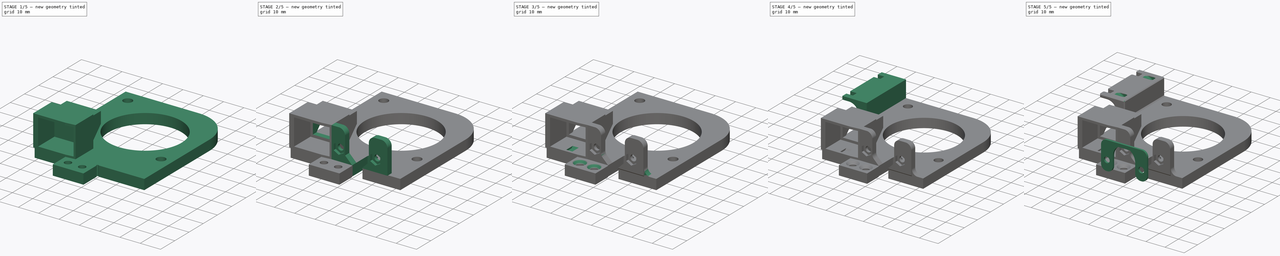
[diagram: build sequence overview — one tinted view per stage of 5, left to right]
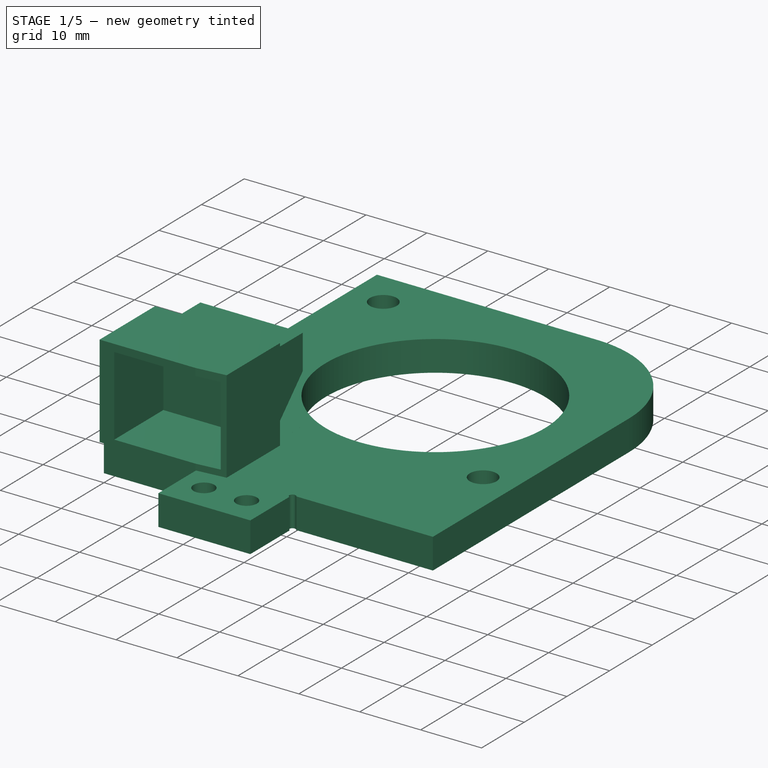
[diagram: stage 1 of 5 — iso view after this stage's code; geometry added in this stage tinted green]
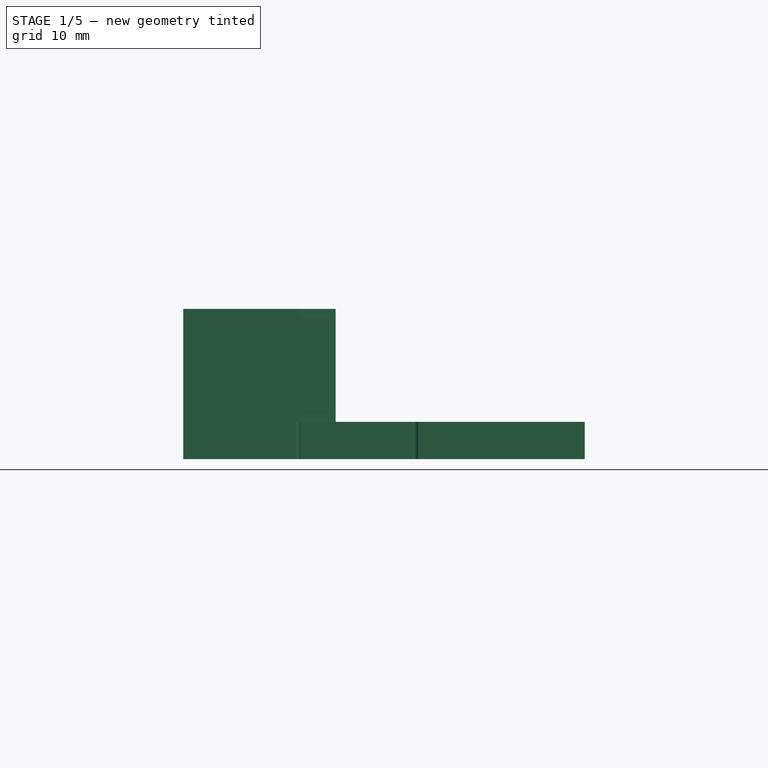
[diagram: stage 1 of 5 — front view after this stage's code; geometry added in this stage tinted green]
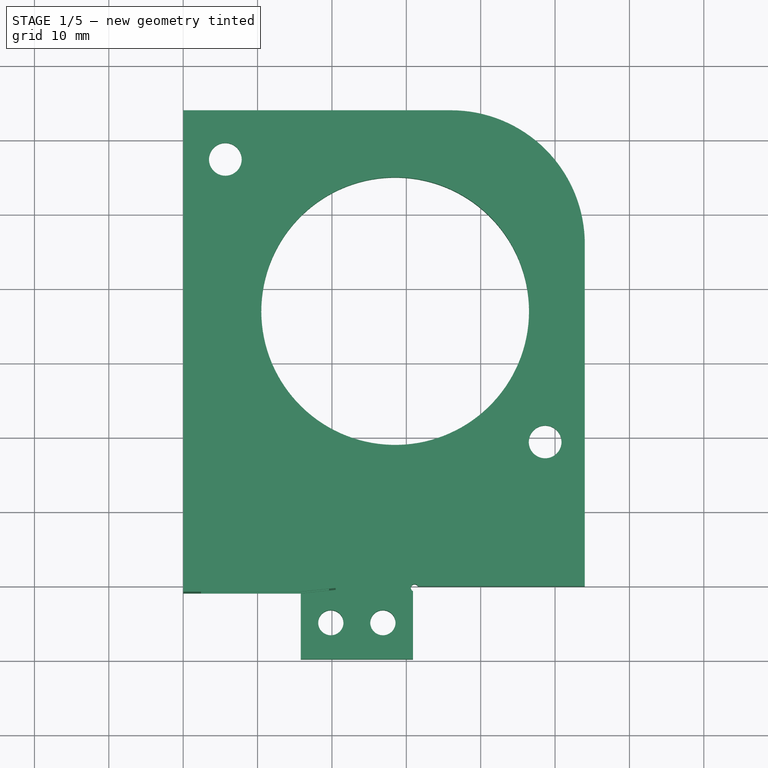
[diagram: stage 1 of 5 — top view after this stage's code; geometry added in this stage tinted green]
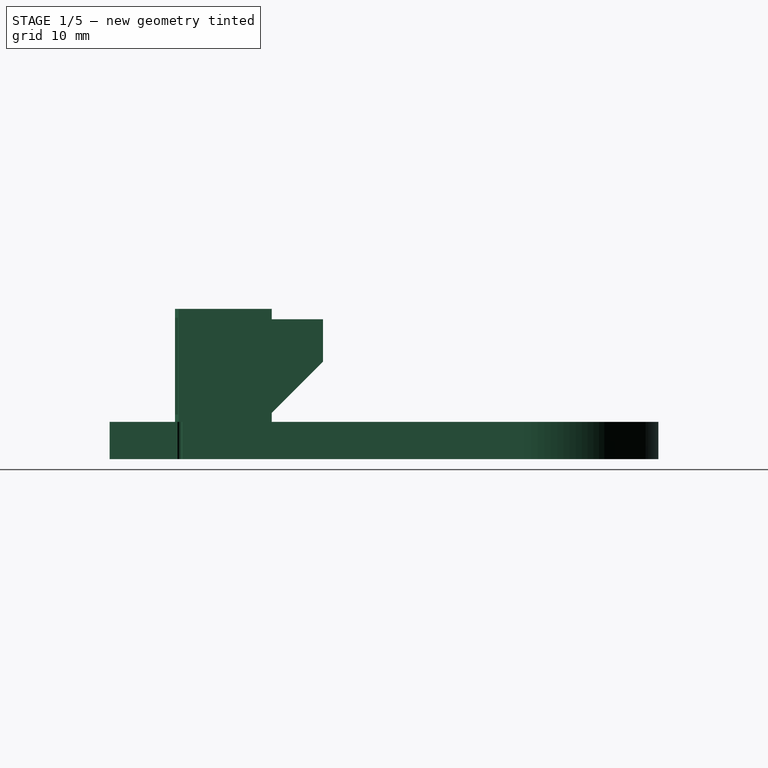
[diagram: stage 1 of 5 — right view after this stage's code; geometry added in this stage tinted green]
FCSTD DOCUMENT  (FreeCAD 0.20R29177 (Git))
Label: _PrntHd_3DTouch-Holder
License: CreativeCommons Attribution
LicenseURL: http://creativecommons.org/licenses/by/4.0/
objects: Sketcher::SketchObject×17, PartDesign::Pocket×9, PartDesign::Pad×6, PartDesign::Chamfer×4, PartDesign::Body×3, PartDesign::Fillet×1, PartDesign::FeatureBase×1, PartDesign::SubtractivePipe×1, PartDesign::LinearPattern×1
note: 64 computed .brp shape members not serialized (recipe doc carries the construction recipe); baked Part::Feature solids carry a one-line shape summary decoded from their .brp

FEATURE [Sketcher::SketchObject] Sketch
  FullyConstrained = true
  MapMode = 5
  Support = -> [XY_Plane]
  sketch-geometry (20):
    g0: LineSegment StartX=0 StartY=-3e-16 StartZ=0 EndX=15.1351 EndY=-3e-16 EndZ=0
    g1: LineSegment StartX=54 StartY=0 StartZ=0 EndX=54 EndY=46 EndZ=0
    g2: LineSegment StartX=36 StartY=64 StartZ=0 EndX=0 EndY=64 EndZ=0
    g3: LineSegment StartX=0 StartY=64 StartZ=0 EndX=0 EndY=0 EndZ=0
    g4: ArcOfCircle CenterX=36 CenterY=46 CenterZ=0 NormalX=0 NormalY=0 NormalZ=1 AngleXU=0 Radius=18 StartAngle=2e-16 EndAngle=1.5708
    g5: Circle CenterX=28.5 CenterY=37 CenterZ=0 NormalX=0 NormalY=0 NormalZ=1 AngleXU=0 Radius=18
    g6: Circle CenterX=5.667 CenterY=57.4 CenterZ=0 NormalX=0 NormalY=0 NormalZ=1 AngleXU=0 Radius=2.2
    g7: Circle CenterX=48.667 CenterY=19.4 CenterZ=0 NormalX=0 NormalY=0 NormalZ=1 AngleXU=0 Radius=2.2
    g8: LineSegment StartX=15.8 StartY=-0.664901 StartZ=0 EndX=15.8 EndY=-9.8 EndZ=0
    g9: LineSegment StartX=15.8 StartY=-9.8 StartZ=0 EndX=30.9 EndY=-9.8 EndZ=0
    g10: LineSegment StartX=30.9 StartY=-9.8 StartZ=0 EndX=30.9 EndY=-0.664901 EndZ=0
    g11: LineSegment StartX=31.5649 StartY=0 StartZ=0 EndX=54 EndY=0 EndZ=0
    g12: LineSegment StartX=15.8 StartY=-4.9 StartZ=0 EndX=30.9 EndY=-4.9 EndZ=0
    g13: LineSegment StartX=23.35 StartY=-9.8 StartZ=0 EndX=23.35 EndY=0 EndZ=0
    g14: Circle CenterX=19.85 CenterY=-4.9 CenterZ=0 NormalX=0 NormalY=0 NormalZ=1 AngleXU=0 Radius=1.7
    g15: Circle CenterX=26.85 CenterY=-4.9 CenterZ=0 NormalX=0 NormalY=0 NormalZ=1 AngleXU=0 Radius=1.7
    g16: ArcOfCircle CenterX=15.5879 CenterY=-0.212132 CenterZ=0 NormalX=0 NormalY=0 NormalZ=1 AngleXU=0 Radius=0.5 StartAngle=5.15054 EndAngle=8.98663
    g17: ArcOfCircle CenterX=31.1121 CenterY=-0.212132 CenterZ=0 NormalX=0 NormalY=0 NormalZ=1 AngleXU=0 Radius=0.5 StartAngle=0.438149 EndAngle=4.27424
    g18: LineSegment StartX=15.5879 StartY=-0.212132 StartZ=0 EndX=15.8 EndY=0 EndZ=0
    g19: LineSegment StartX=31.1121 StartY=-0.212132 StartZ=0 EndX=30.9 EndY=0 EndZ=0
  constraints (58):
    c: Coincident(g11,g1)
    c: Coincident(g2,g3)
    c: Coincident(g3,g0)
    c: Horizontal(g0)
    c: Horizontal(g2)
    c: Vertical(g1)
    c: Vertical(g3)
    c: Coincident(g0,g-1)
    c: Tangent(g2,g4) = -1.5708
    c: Tangent(g1,g4) = -1.5708
    c: Vertical(g8)
    c: Coincident(g8,g9)
    c: Horizontal(g9)
    c: Coincident(g9,g10)
    c: Vertical(g10)
    c: Tangent(g0,g11)
    c: PointOnObject(g12,g8)
    c: PointOnObject(g12,g10)
    c: PointOnObject(g13,g9)
    c: PointOnObject(g13,g-1)
    c: DistanceY(g7,g6) = 38
    c: DistanceX(g6,g7) = 43
    c: Diameter(g5) = 36
    c: DistanceY(g0,g5) = 37
    c: DistanceX(g-1,g5) = 28.5
    c: DistanceY(g3,g3) = 64
    c: DistanceX(g0,g1) = 54
    c: DistanceX(g2,g6) = 5.667
    c: DistanceY(g6,g2) = 6.6
    c: Equal(g6,g7)
    c: Diameter(g7) = 4.4
    c: DistanceX(g9,g9) = 15.1
    c: DistanceX(g0,g13) = 23.35
    c: Radius(g4) = 18
    c: PointOnObject(g14,g12)
    c: Equal(g14,g15)
    c: Symmetric(g14,g15,g13)
    c: Diameter(g14) = 3.4
    c: DistanceX(g14,g15) = 7
    c: Coincident(g18,g16)
    c: Coincident(g8,g16)
    c: Coincident(g0,g16)
    c: PointOnObject(g18,g8)
    c: PointOnObject(g18,g-1)
    c: Angle(g-1,g18) = 0.785398
    c: Distance(g18) = 0.3
    c: Coincident(g10,g17)
    c: Coincident(g11,g17)
    c: Coincident(g19,g17)
    c: PointOnObject(g19,g-1)
    c: PointOnObject(g19,g10)
    c: Angle(g-1,g19) = 2.35619
    c: Equal(g18,g19)
    c: Equal(g17,g16)
    c: Diameter(g16) = 1
    c: Symmetric(g9,g8,g13)
    c: Symmetric(g13,g13,g12)
    c: DistanceY(g8,g0) = 9.8
FEATURE [PartDesign::Pad] Pad  label="Pad_FanPlate"
  AllowMultiFace = false
  Direction = (0,0,1)
  Length = 5
  Length2 = 100
  Profile = -> Sketch
  Type = 0
FEATURE [Sketcher::SketchObject] Sketch001
  ExternalGeometry = -> [Sketch]
  FullyConstrained = true
  MapMode = 5
  Support = -> [XY_Plane]
  sketch-geometry (14):
    g0: LineSegment StartX=5.667 StartY=54.0514 StartZ=0 EndX=8.567 EndY=55.7257 EndZ=0
    g1: LineSegment StartX=8.567 StartY=55.7257 StartZ=0 EndX=8.567 EndY=59.0743 EndZ=0
    g2: LineSegment StartX=8.567 StartY=59.0743 StartZ=0 EndX=5.667 EndY=60.7486 EndZ=0
    g3: LineSegment StartX=5.667 StartY=60.7486 StartZ=0 EndX=2.767 EndY=59.0743 EndZ=0
    g4: LineSegment StartX=2.767 StartY=59.0743 StartZ=0 EndX=2.767 EndY=55.7257 EndZ=0
    g5: LineSegment StartX=2.767 StartY=55.7257 StartZ=0 EndX=5.667 EndY=54.0514 EndZ=0
    g6: Circle CenterX=5.667 CenterY=57.4 CenterZ=0 NormalX=0 NormalY=0 NormalZ=1 AngleXU=0 Radius=3.34863
    g7: LineSegment StartX=48.667 StartY=16.0514 StartZ=0 EndX=51.567 EndY=17.7257 EndZ=0
    g8: LineSegment StartX=51.567 StartY=17.7257 StartZ=0 EndX=51.567 EndY=21.0743 EndZ=0
    g9: LineSegment StartX=51.567 StartY=21.0743 StartZ=0 EndX=48.667 EndY=22.7486 EndZ=0
    g10: LineSegment StartX=48.667 StartY=22.7486 StartZ=0 EndX=45.767 EndY=21.0743 EndZ=0
    g11: LineSegment StartX=45.767 StartY=21.0743 StartZ=0 EndX=45.767 EndY=17.7257 EndZ=0
    g12: LineSegment StartX=45.767 StartY=17.7257 StartZ=0 EndX=48.667 EndY=16.0514 EndZ=0
    g13: Circle CenterX=48.667 CenterY=19.4 CenterZ=0 NormalX=0 NormalY=0 NormalZ=1 AngleXU=0 Radius=3.34863
  constraints (32):
    c: Coincident(g0,g1)
    c: Coincident(g1,g2)
    c: Coincident(g2,g3)
    c: Coincident(g3,g4)
    c: Coincident(g4,g5)
    c: Coincident(g5,g0)
    c: Equal(g0, g1-g5) x5
    c: PointOnObject(g0,g6)
    c: PointOnObject(g1,g6)
    c: PointOnObject(g2,g6)
    c: PointOnObject(g3,g6)
    c: PointOnObject(g4,g6)
    c: PointOnObject(g5,g6)
    c: Coincident(g7,g8)
    c: Coincident(g8,g9)
    c: Coincident(g9,g10)
    c: Coincident(g10,g11)
    c: Coincident(g11,g12)
    c: Coincident(g12,g7)
    c: Equal(g7, g8-g12) x5
    c: PointOnObject(g7,g13)
    c: PointOnObject(g8,g13)
    c: PointOnObject(g9,g13)
    c: PointOnObject(g10,g13)
    c: PointOnObject(g11,g13)
    c: PointOnObject(g12,g13)
    c: Coincident(g6,g-3)
    c: Coincident(g-4,g13)
    c: Vertical(g11)
    c: Vertical(g4)
    c: Equal(g6,g13)
    c: DistanceX(g4,g0) = 5.8
FEATURE [PartDesign::Pocket] Pocket  label="Pocket_M3-HexNut"
  AllowMultiFace = false
  BaseFeature = -> Pad
  Direction = (0,0,-1)
  Length = 2.2
  Length2 = 100
  Profile = -> Sketch001
  Reversed = true
  Type = 0
FEATURE [Sketcher::SketchObject] Sketch002  label="SketchDuctExt"
  AttachmentOffset = pos=(0,0,5) rot=(0,0,1;0rad)
  FullyConstrained = true
  MapMode = 5
  Placement = pos=(0,0,5) rot=(0,0,1;0rad)
  Support = -> [XY_Plane]
  expr: .AttachmentOffset.Base.z = Pad.Length
  sketch-geometry (10):
    g0: LineSegment StartX=0 StartY=12 StartZ=0 EndX=2.6 EndY=12 EndZ=0
    g1: LineSegment StartX=20.5 StartY=12 StartZ=0 EndX=20.5 EndY=-0.5 EndZ=0
    g2: LineSegment StartX=15.7 StartY=-1 StartZ=0 EndX=0 EndY=-1 EndZ=0
    g3: LineSegment StartX=0 StartY=-1 StartZ=0 EndX=0 EndY=12 EndZ=0
    g4: LineSegment StartX=19.4 StartY=12 StartZ=0 EndX=19.4 EndY=18.9 EndZ=0
    g5: LineSegment StartX=19.4 StartY=18.9 StartZ=0 EndX=2.6 EndY=18.9 EndZ=0
    g6: LineSegment StartX=2.6 StartY=18.9 StartZ=0 EndX=2.6 EndY=12 EndZ=0
    g7: LineSegment StartX=20.5 StartY=12 StartZ=0 EndX=19.4 EndY=12 EndZ=0
    g8: LineSegment StartX=11 StartY=18.9 StartZ=0 EndX=11 EndY=-1 EndZ=0
    g9: LineSegment StartX=15.7 StartY=-1 StartZ=0 EndX=20.5 EndY=-0.5 EndZ=0
  constraints (30):
    c: Coincident(g2,g3)
    c: Coincident(g3,g0)
    c: Horizontal(g0)
    c: Horizontal(g2)
    c: Vertical(g1)
    c: Vertical(g3)
    c: Coincident(g4,g5)
    c: Coincident(g5,g6)
    c: Horizontal(g5)
    c: Vertical(g4)
    c: Vertical(g6)
    c: Coincident(g0,g6)
    c: Coincident(g7,g1)
    c: Coincident(g7,g4)
    c: DistanceX(g5,g5) = 16.8
    c: DistanceY(g3,g3) = 13
    c: DistanceY(g6,g6) = 6.9
    c: PointOnObject(g8,g5)
    c: PointOnObject(g8,g2)
    c: Equal(g6,g4)
    c: Coincident(g9,g2)
    c: Coincident(g9,g1)
    c: DistanceY(g1,g1) = 12.5
    c: Symmetric(g4,g5,g8)
    c: DistanceX(g2,g1) = 4.8
    c: Horizontal(g7)
    c: PointOnObject(g-1,g3)
    c: DistanceY(g2,g-1) = 1
    c: DistanceX(g-1,g8) = 11
    c: DistanceX(g2,g1) = 20.5
FEATURE [PartDesign::Pad] Pad001  label="Pad_DuctExt"
  AllowMultiFace = false
  BaseFeature = -> Pocket
  Direction = (0,0,1)
  Length = 15.2
  Length2 = 100
  Profile = -> Sketch002
  Type = 0
FEATURE [Sketcher::SketchObject] Sketch007
  AttachmentOffset = pos=(0,0,11) rot=(0,0,1;0rad)
  ExternalGeometry = -> [Sketch002]
  FullyConstrained = true
  MapMode = 5
  Placement = pos=(11,-2.4e-15,2.4e-15) rot=(0.57735,0.57735,0.57735;2.0944rad)
  Support = -> [YZ_Plane]
  sketch-geometry (9):
    g0: LineSegment StartX=12 StartY=21.001 StartZ=0 EndX=18.92 EndY=21.001 EndZ=0
    g1: LineSegment StartX=18.92 StartY=21.001 StartZ=0 EndX=18.92 EndY=5.001 EndZ=0
    g2: LineSegment StartX=18.92 StartY=5.001 StartZ=0 EndX=12 EndY=5.001 EndZ=0
    g3: LineSegment StartX=12 StartY=5.001 StartZ=0 EndX=12 EndY=6.201 EndZ=0
    g4: LineSegment StartX=12 StartY=18.801 StartZ=0 EndX=12 EndY=6.201 EndZ=0
    g5: LineSegment StartX=12 StartY=6.201 StartZ=0 EndX=18.9 EndY=13.101 EndZ=0
    g6: LineSegment StartX=18.9 StartY=13.101 StartZ=0 EndX=18.9 EndY=18.801 EndZ=0
    g7: LineSegment StartX=18.9 StartY=18.801 StartZ=0 EndX=12 EndY=18.801 EndZ=0
    g8: LineSegment StartX=12 StartY=18.801 StartZ=0 EndX=12 EndY=21.001 EndZ=0
  constraints (26):
    c: Horizontal(g0)
    c: Coincident(g0,g1)
    c: Vertical(g1)
    c: Coincident(g1,g2)
    c: Horizontal(g2)
    c: Coincident(g2,g3)
    c: Vertical(g3)
    c: DistanceX(g-1,g2) = 12
    c: DistanceY(g3,g3) = 1.2
    c: Coincident(g4,g3)
    c: Vertical(g4)
    c: DistanceY(g1,g1) = 16
    c: DistanceX(g0,g0) = 6.92
    c: Coincident(g5,g3)
    c: Coincident(g6,g5)
    c: Vertical(g6)
    c: Coincident(g7,g6)
    c: Horizontal(g7)
    c: Coincident(g8,g7)
    c: Coincident(g8,g0)
    c: Vertical(g8)
    c: Coincident(g4,g7)
    c: DistanceY(g8,g8) = 2.2
    c: Angle(g5,g4) = 0.785398
    c: DistanceX(g7,g7) = 6.9
    c: DistanceY(g-3,g1) = 0.001
FEATURE [PartDesign::Pocket] Pocket001  label="Pocket_CentFanAdapter"
  AllowMultiFace = false
  BaseFeature = -> Pad001
  Direction = (-1,2e-16,-3e-16)
  Length = 16.8
  Length2 = 100
  Midplane = true
  Profile = -> Sketch007
  ReferenceAxis = -> Sketch007 [N_Axis]
  Type = 1
FEATURE [Sketcher::SketchObject] Sketch008
  AttachmentOffset = pos=(0,0,1) rot=(0,0,1;0rad)
  FullyConstrained = true
  MapMode = 5
  Placement = pos=(0,-1,-2e-16) rot=(1,0,0;1.5708rad)
  Support = -> [XZ_Plane]
  sketch-geometry (5):
    g0: LineSegment StartX=2.4 StartY=19 StartZ=0 EndX=19.6 EndY=19 EndZ=0
    g1: LineSegment StartX=19.6 StartY=19 StartZ=0 EndX=19.6 EndY=6 EndZ=0
    g2: LineSegment StartX=19.6 StartY=6 StartZ=0 EndX=2.4 EndY=6 EndZ=0
    g3: LineSegment StartX=2.4 StartY=6 StartZ=0 EndX=2.4 EndY=19 EndZ=0
    g4: LineSegment StartX=11 StartY=19 StartZ=0 EndX=11 EndY=6 EndZ=0
  constraints (15):
    c: Coincident(g0,g1)
    c: Coincident(g1,g2)
    c: Coincident(g2,g3)
    c: Coincident(g3,g0)
    c: Horizontal(g0)
    c: Horizontal(g2)
    c: Vertical(g1)
    c: Vertical(g3)
    c: DistanceX(g0,g0) = 17.2
    c: DistanceY(g3,g3) = 13
    c: DistanceY(g-1,g2) = 6
    c: PointOnObject(g4,g0)
    c: PointOnObject(g4,g2)
    c: Symmetric(g1,g2,g4)
    c: DistanceX(g-1,g4) = 11
FEATURE [PartDesign::Pocket] Pocket002  label="Pocket_HoleDuct"
  AllowMultiFace = false
  BaseFeature = -> Pocket001
  Direction = (0,1,2e-16)
  Length = 11.5
  Length2 = 100
  Profile = -> Sketch008
  Type = 0
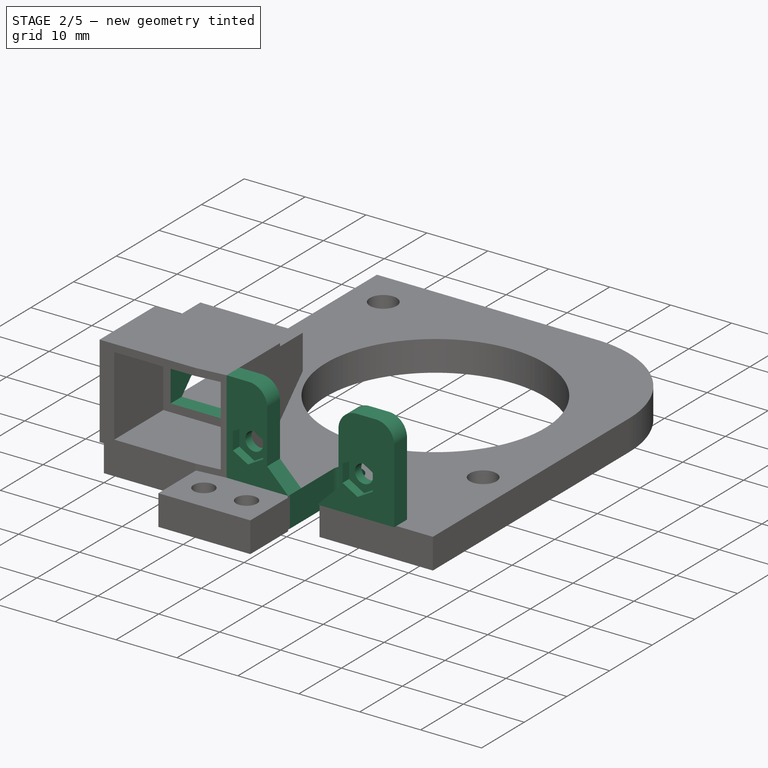
[diagram: stage 2 of 5 — iso view after this stage's code; geometry added in this stage tinted green]
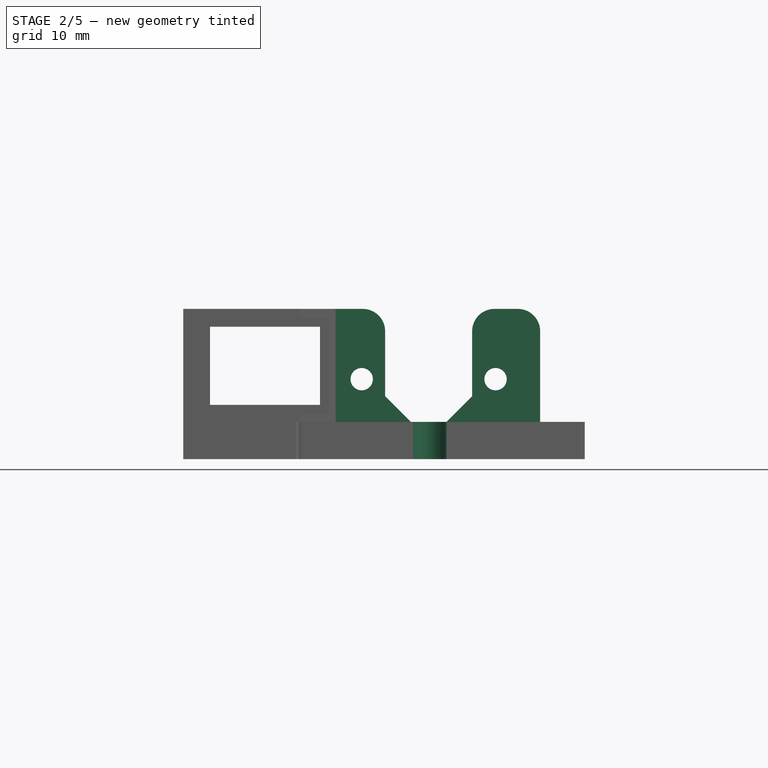
[diagram: stage 2 of 5 — front view after this stage's code; geometry added in this stage tinted green]
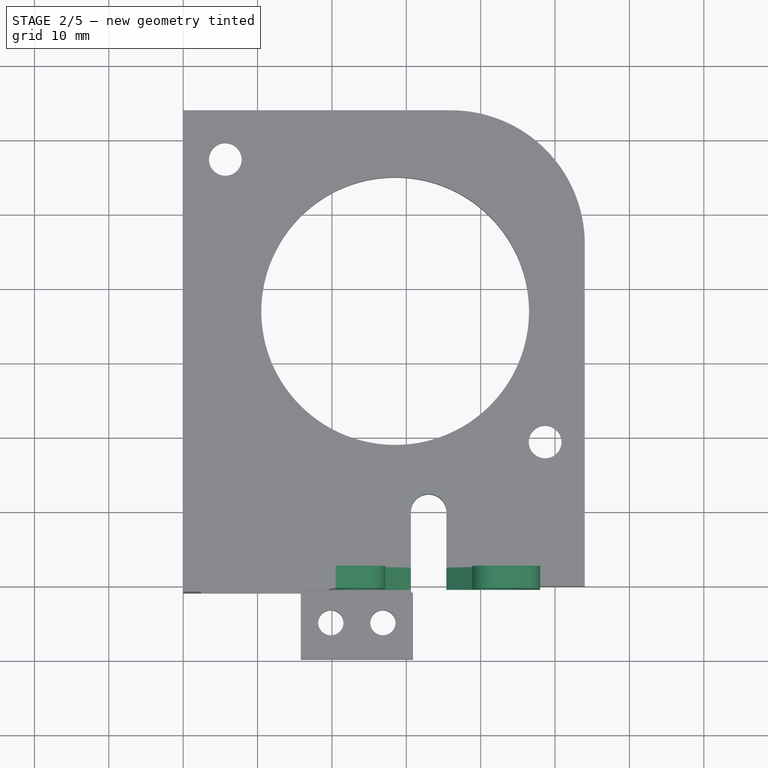
[diagram: stage 2 of 5 — top view after this stage's code; geometry added in this stage tinted green]
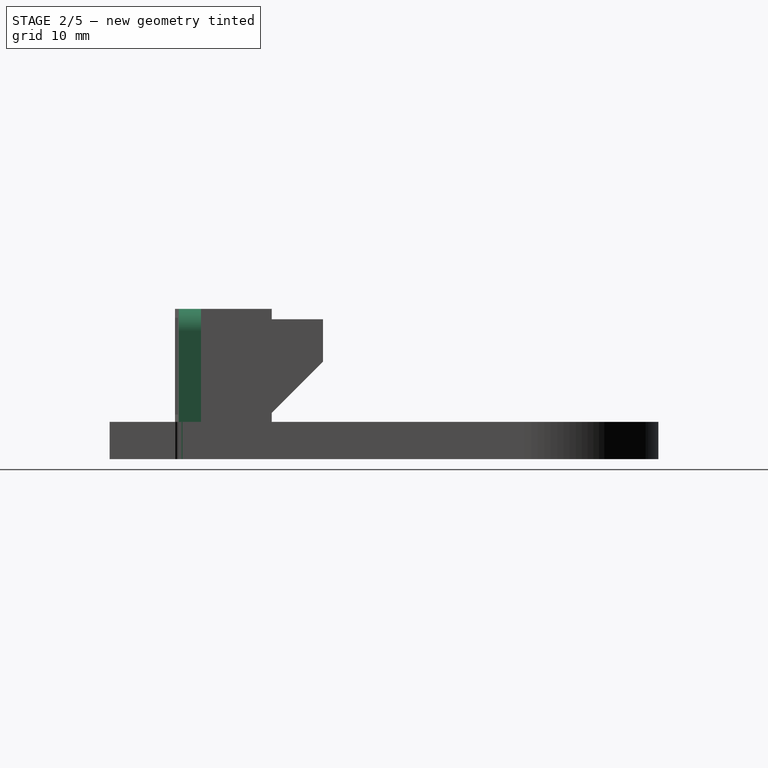
[diagram: stage 2 of 5 — right view after this stage's code; geometry added in this stage tinted green]
FEATURE [Sketcher::SketchObject] Sketch009
  AttachmentOffset = pos=(0,0,-18.9) rot=(0,0,1;0rad)
  FullyConstrained = true
  MapMode = 5
  Placement = pos=(0,18.9,4.2e-15) rot=(1,0,0;1.5708rad)
  Support = -> [XZ_Plane]
  sketch-geometry (5):
    g0: LineSegment StartX=3.6 StartY=17.8 StartZ=0 EndX=18.4 EndY=17.8 EndZ=0
    g1: LineSegment StartX=18.4 StartY=17.8 StartZ=0 EndX=18.4 EndY=7.3 EndZ=0
    g2: LineSegment StartX=18.4 StartY=7.3 StartZ=0 EndX=3.6 EndY=7.3 EndZ=0
    g3: LineSegment StartX=3.6 StartY=7.3 StartZ=0 EndX=3.6 EndY=17.8 EndZ=0
    g4: LineSegment StartX=11 StartY=17.8 StartZ=0 EndX=11 EndY=7.3 EndZ=0
  constraints (15):
    c: Coincident(g0,g1)
    c: Coincident(g1,g2)
    c: Coincident(g2,g3)
    c: Coincident(g3,g0)
    c: Horizontal(g0)
    c: Horizontal(g2)
    c: Vertical(g1)
    c: Vertical(g3)
    c: DistanceY(g3,g3) = 10.5
    c: DistanceX(g0,g0) = 14.8
    c: DistanceY(g-1,g2) = 7.3
    c: PointOnObject(g4,g0)
    c: PointOnObject(g4,g2)
    c: Symmetric(g2,g1,g4)
    c: DistanceX(g-1,g4) = 11
FEATURE [PartDesign::Pocket] Pocket003  label="Pocket_HoleAdapter"
  AllowMultiFace = false
  BaseFeature = -> Pocket002
  Direction = (0,1,2e-16)
  Length = 9
  Length2 = 100
  Profile = -> Sketch009
  Reversed = true
  Type = 1
FEATURE [Sketcher::SketchObject] Sketch010
  AttachmentOffset = pos=(0,0,0.5) rot=(0,0,1;0rad)
  FullyConstrained = true
  MapMode = 5
  Placement = pos=(0,-0.5,-1e-16) rot=(1,0,0;1.5708rad)
  Support = -> [XZ_Plane]
  sketch-geometry (18):
    g0: LineSegment StartX=24.15 StartY=20.198 StartZ=0 EndX=20.5 EndY=20.198 EndZ=0
    g1: LineSegment StartX=20.5 StartY=20.198 StartZ=0 EndX=20.5 EndY=4.998 EndZ=0
    g2: LineSegment StartX=20.5 StartY=4.998 StartZ=0 EndX=48 EndY=4.998 EndZ=0
    g3: LineSegment StartX=48 StartY=4.998 StartZ=0 EndX=48 EndY=17.198 EndZ=0
    g4: ArcOfCircle CenterX=45 CenterY=17.198 CenterZ=0 NormalX=0 NormalY=0 NormalZ=1 AngleXU=0 Radius=3 StartAngle=2e-16 EndAngle=1.5708
    g5: LineSegment StartX=45 StartY=20.198 StartZ=0 EndX=41.85 EndY=20.198 EndZ=0
    g6: ArcOfCircle CenterX=41.85 CenterY=17.198 CenterZ=0 NormalX=0 NormalY=0 NormalZ=1 AngleXU=0 Radius=3 StartAngle=1.5708 EndAngle=3.14159
    g7: LineSegment StartX=38.85 StartY=17.198 StartZ=0 EndX=38.85 EndY=8.46827 EndZ=0
    g8: LineSegment StartX=38.85 StartY=8.46827 StartZ=0 EndX=35.3817 EndY=5 EndZ=0
    g9: LineSegment StartX=35.3817 StartY=5 StartZ=0 EndX=30.6183 EndY=5 EndZ=0
    g10: LineSegment StartX=30.6183 StartY=5 StartZ=0 EndX=27.15 EndY=8.46827 EndZ=0
    g11: LineSegment StartX=27.15 StartY=8.46827 StartZ=0 EndX=27.15 EndY=17.198 EndZ=0
    g12: ArcOfCircle CenterX=24.15 CenterY=17.198 CenterZ=0 NormalX=0 NormalY=0 NormalZ=1 AngleXU=0 Radius=3 StartAngle=4e-16 EndAngle=1.5708
    g13: Circle CenterX=33 CenterY=10.75 CenterZ=0 NormalX=0 NormalY=0 NormalZ=1 AngleXU=0 Radius=5.75
    g14: LineSegment StartX=33 StartY=5 StartZ=0 EndX=33 EndY=16.5 EndZ=0
    g15: Circle CenterX=24 CenterY=10.75 CenterZ=0 NormalX=0 NormalY=0 NormalZ=1 AngleXU=0 Radius=1.5
    g16: Circle CenterX=42 CenterY=10.75 CenterZ=0 NormalX=0 NormalY=0 NormalZ=1 AngleXU=0 Radius=1.5
    g17: LineSegment StartX=24 StartY=10.75 StartZ=0 EndX=42 EndY=10.75 EndZ=0
  constraints (48):
    c: Horizontal(g0)
    c: Coincident(g0,g1)
    c: Vertical(g1)
    c: Coincident(g1,g2)
    c: Horizontal(g2)
    c: Coincident(g2,g3)
    c: Vertical(g3)
    c: Tangent(g3,g4) = -1.5708
    c: Tangent(g4,g5) = -1.5708
    c: Tangent(g5,g6) = -1.5708
    c: Tangent(g6,g7) = -1.5708
    c: Coincident(g7,g8)
    c: Coincident(g8,g9)
    c: Horizontal(g9)
    c: Coincident(g9,g10)
    c: Coincident(g10,g11)
    c: Vertical(g11)
    c: Tangent(g11,g12) = -1.5708
    c: Coincident(g12,g0)
    c: DistanceY(g-1,g1) = 4.998
    c: DistanceY(g-1,g9) = 5
    c: PointOnObject(g14,g9)
    c: DistanceX(g0,g14) = 12.5
    c: DistanceX(g14,g3) = 15
    c: Horizontal(g5)
    c: DistanceY(g2,g4) = 15.2
    c: Equal(g4,g6)
    c: Equal(g6,g12)
    c: Radius(g4) = 3
    c: PointOnObject(g13,g14)
    c: Symmetric(g7,g10,g14)
    c: Symmetric(g8,g9,g14)
    c: Perpendicular(g10,g8)
    c: Tangent(g13,g9)
    c: Diameter(g13) = 11.5
    c: DistanceX(g11,g6) = 11.7
    c: Tangent(g13,g10)
    c: Symmetric(g6,g12,g14)
    c: PointOnObject(g14,g13)
    c: Tangent(g0,g12)
    c: Symmetric(g15,g16,g14)
    c: Equal(g15,g16)
    c: Coincident(g17,g15)
    c: Coincident(g17,g16)
    c: PointOnObject(g13,g17)
    c: DistanceX(g17,g17) = 18
    c: Diameter(g15) = 3
    c: DistanceX(g-1,g14) = 33
FEATURE [PartDesign::Pad] Pad002  label="Pad_3DTouchHolder"
  AllowMultiFace = false
  BaseFeature = -> Pocket003
  Direction = (0,-1,-2e-16)
  Length = 3
  Length2 = 100
  Profile = -> Sketch010
  Reversed = true
  Type = 0
FEATURE [Sketcher::SketchObject] Sketch011
  ExternalGeometry = -> [Sketch010]
  FullyConstrained = true
  MapMode = 5
  Support = -> [XY_Plane]
  sketch-geometry (6):
    g0: LineSegment StartX=30.6183 StartY=10 StartZ=0 EndX=35.3817 EndY=10 EndZ=0
    g1: LineSegment StartX=35.3817 StartY=10 StartZ=0 EndX=35.3817 EndY=-1 EndZ=0
    g2: LineSegment StartX=35.3817 StartY=-1 StartZ=0 EndX=31.1183 EndY=-1 EndZ=0
    g3: LineSegment StartX=30.6183 StartY=-0.5 StartZ=0 EndX=30.6183 EndY=10 EndZ=0
    g4: ArcOfCircle CenterX=33 CenterY=10 CenterZ=0 NormalX=0 NormalY=0 NormalZ=1 AngleXU=0 Radius=2.38173 StartAngle=3.2e-15 EndAngle=3.14159
    g5: ArcOfCircle CenterX=31.1183 CenterY=-0.5 CenterZ=0 NormalX=0 NormalY=0 NormalZ=1 AngleXU=0 Radius=0.5 StartAngle=3.14159 EndAngle=4.71239
  constraints (17):
    c: Coincident(g0,g1)
    c: Coincident(g1,g2)
    c: Coincident(g3,g0)
    c: Horizontal(g0)
    c: Vertical(g1)
    c: Vertical(g3)
    c: PointOnObject(g4,g0)
    c: Coincident(g4,g3)
    c: Coincident(g4,g1)
    c: DistanceY(g1,g1) = 11
    c: DistanceX(g-1,g4) = 33
    c: PointOnObject(g-3,g1)
    c: DistanceY(g1,g-1) = 1
    c: Horizontal(g2)
    c: Tangent(g3,g5) = 1.5708
    c: Tangent(g2,g5) = 1.5708
    c: Radius(g5) = 0.5
FEATURE [PartDesign::Pocket] Pocket004  label="Pocket_Slot"
  AllowMultiFace = false
  BaseFeature = -> Pad002
  Direction = (0,0,-1)
  Length = 5
  Length2 = 100
  Profile = -> Sketch011
  Reversed = true
  Type = 1
FEATURE [Sketcher::SketchObject] Sketch012
  AttachmentOffset = pos=(0,0,0.5) rot=(0,0,1;0rad)
  ExternalGeometry = -> [Sketch010]
  FullyConstrained = true
  MapMode = 5
  Placement = pos=(0,-0.5,-1e-16) rot=(1,0,0;1.5708rad)
  Support = -> [XZ_Plane]
  sketch-geometry (14):
    g0: LineSegment StartX=24 StartY=13.6079 StartZ=0 EndX=21.525 EndY=12.1789 EndZ=0
    g1: LineSegment StartX=21.525 StartY=12.1789 StartZ=0 EndX=21.525 EndY=9.32106 EndZ=0
    g2: LineSegment StartX=21.525 StartY=9.32106 StartZ=0 EndX=24 EndY=7.89212 EndZ=0
    g3: LineSegment StartX=24 StartY=7.89212 StartZ=0 EndX=26.475 EndY=9.32106 EndZ=0
    g4: LineSegment StartX=26.475 StartY=9.32106 StartZ=0 EndX=26.475 EndY=12.1789 EndZ=0
    g5: LineSegment StartX=26.475 StartY=12.1789 StartZ=0 EndX=24 EndY=13.6079 EndZ=0
    g6: Circle CenterX=24 CenterY=10.75 CenterZ=0 NormalX=0 NormalY=0 NormalZ=1 AngleXU=0 Radius=2.85788
    g7: LineSegment StartX=42 StartY=13.6079 StartZ=0 EndX=39.525 EndY=12.1789 EndZ=0
    g8: LineSegment StartX=39.525 StartY=12.1789 StartZ=0 EndX=39.525 EndY=9.32106 EndZ=0
    g9: LineSegment StartX=39.525 StartY=9.32106 StartZ=0 EndX=42 EndY=7.89212 EndZ=0
    g10: LineSegment StartX=42 StartY=7.89212 StartZ=0 EndX=44.475 EndY=9.32106 EndZ=0
    g11: LineSegment StartX=44.475 StartY=9.32106 StartZ=0 EndX=44.475 EndY=12.1789 EndZ=0
    g12: LineSegment StartX=44.475 StartY=12.1789 StartZ=0 EndX=42 EndY=13.6079 EndZ=0
    g13: Circle CenterX=42 CenterY=10.75 CenterZ=0 NormalX=0 NormalY=0 NormalZ=1 AngleXU=0 Radius=2.85788
  constraints (32):
    c: Coincident(g0,g1)
    c: Coincident(g1,g2)
    c: Coincident(g2,g3)
    c: Coincident(g3,g4)
    c: Coincident(g4,g5)
    c: Coincident(g5,g0)
    c: Equal(g0, g1-g5) x5
    c: PointOnObject(g0,g6)
    c: PointOnObject(g1,g6)
    c: PointOnObject(g2,g6)
    c: PointOnObject(g3,g6)
    c: PointOnObject(g4,g6)
    c: PointOnObject(g5,g6)
    c: Coincident(g7,g8)
    c: Coincident(g8,g9)
    c: Coincident(g9,g10)
    c: Coincident(g10,g11)
    c: Coincident(g11,g12)
    c: Coincident(g12,g7)
    c: Equal(g7, g8-g12) x5
    c: PointOnObject(g7,g13)
    c: PointOnObject(g8,g13)
    c: PointOnObject(g9,g13)
    c: PointOnObject(g10,g13)
    c: PointOnObject(g11,g13)
    c: PointOnObject(g12,g13)
    c: Equal(g6,g13)
    c: Vertical(g4)
    c: Vertical(g8)
    c: DistanceX(g0,g4) = 4.95
    c: Coincident(g6,g-3)
    c: Coincident(g13,g-4)
FEATURE [PartDesign::Pocket] Pocket005  label="Pocket_M2.5-HexNut"
  AllowMultiFace = false
  BaseFeature = -> Pocket004
  Direction = (0,1,2e-16)
  Length = 1.5
  Length2 = 100
  Profile = -> Sketch012
  Type = 0
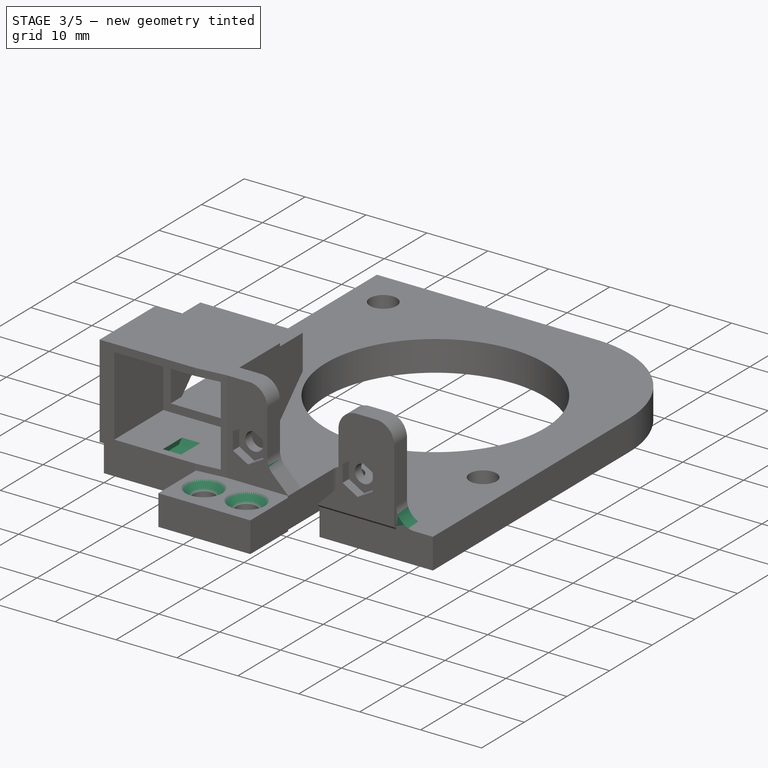
[diagram: stage 3 of 5 — iso view after this stage's code; geometry added in this stage tinted green]
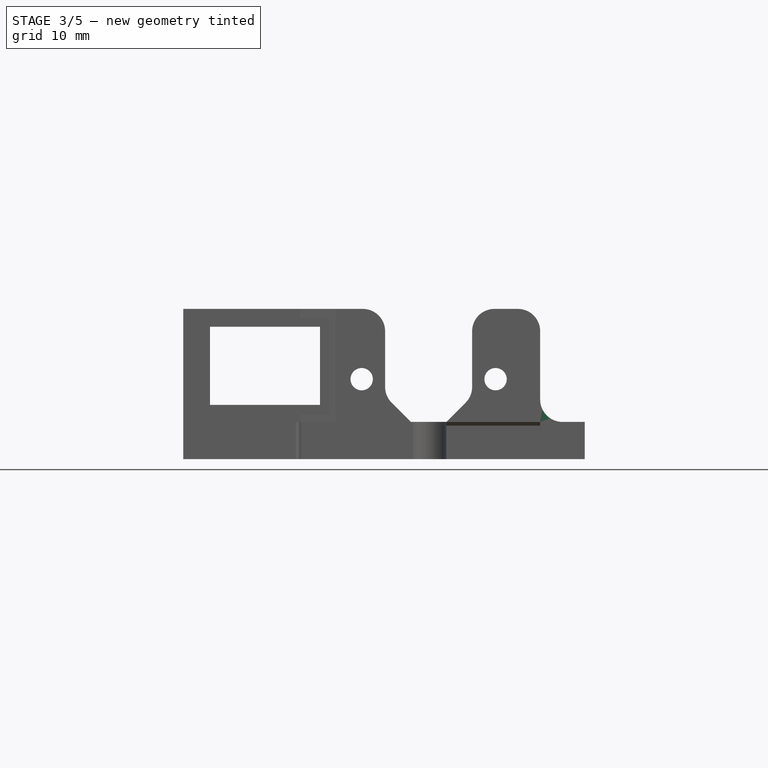
[diagram: stage 3 of 5 — front view after this stage's code; geometry added in this stage tinted green]
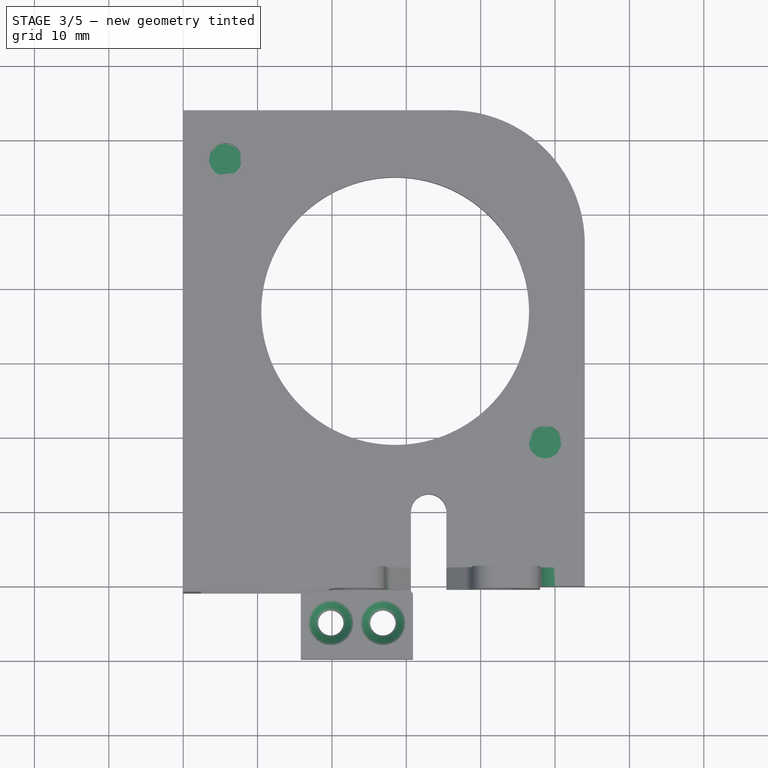
[diagram: stage 3 of 5 — top view after this stage's code; geometry added in this stage tinted green]
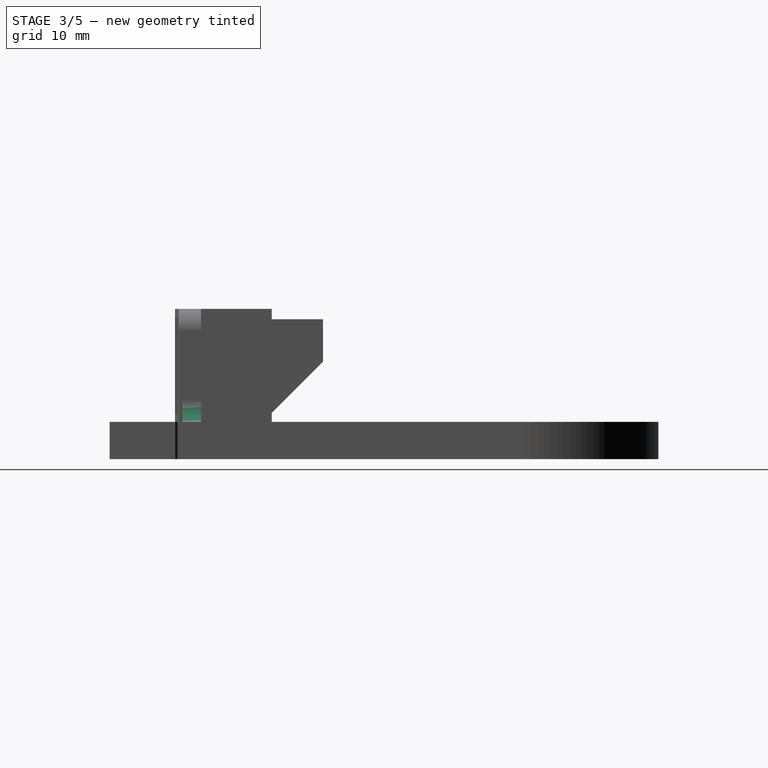
[diagram: stage 3 of 5 — right view after this stage's code; geometry added in this stage tinted green]
FEATURE [PartDesign::Body] Body001  label="DistanceHolder1mm"
  Group = -> [Sketch013,Pad003]
  Origin = -> Origin001
  Placement = pos=(0,16,0) rot=(0,0,1;0rad)
  Tip = -> Pad003
FEATURE [Sketcher::SketchObject] Sketch014
  AttachmentOffset = pos=(0,0,-34) rot=(0,0,1;0rad)
  FullyConstrained = true
  MapMode = 5
  Placement = pos=(0,34,7.5e-15) rot=(1,0,0;1.5708rad)
  Support = -> [XZ_Plane002]
  sketch-geometry (10):
    g0: ArcOfCircle CenterX=-9.5 CenterY=7 CenterZ=0 NormalX=0 NormalY=0 NormalZ=1 AngleXU=0 Radius=5.25 StartAngle=4.71239 EndAngle=7.85398
    g1: LineSegment StartX=-9.5 StartY=12.25 StartZ=0 EndX=-13 EndY=12.25 EndZ=0
    g2: LineSegment StartX=-13 StartY=12.25 StartZ=0 EndX=-13 EndY=14 EndZ=0
    g3: LineSegment StartX=-13 StartY=14 StartZ=0 EndX=0 EndY=14 EndZ=0
    g4: LineSegment StartX=0 StartY=14 StartZ=0 EndX=0 EndY=0 EndZ=0
    g5: LineSegment StartX=0 StartY=0 StartZ=0 EndX=-13 EndY=0 EndZ=0
    g6: LineSegment StartX=-13 StartY=0 StartZ=0 EndX=-13 EndY=1.75 EndZ=0
    g7: LineSegment StartX=-13 StartY=1.75 StartZ=0 EndX=-9.5 EndY=1.75 EndZ=0
    g8: LineSegment StartX=-9.5 StartY=7 StartZ=0 EndX=0 EndY=7 EndZ=0
    g9: GeomPoint X=-4.25 Y=7 Z=0
  constraints (28):
    c: Tangent(g0,g1) = -1.5708
    c: Coincident(g1,g2)
    c: Vertical(g2)
    c: Coincident(g2,g3)
    c: Horizontal(g3)
    c: Coincident(g3,g4)
    c: Vertical(g4)
    c: Coincident(g4,g5)
    c: Horizontal(g5)
    c: Coincident(g5,g6)
    c: Vertical(g6)
    c: Coincident(g6,g7)
    c: Coincident(g7,g0)
    c: Horizontal(g7)
    c: Equal(g5,g3)
    c: Equal(g7,g1)
    c: Tangent(g0,g7)
    c: Coincident(g8,g0)
    c: PointOnObject(g8,g4)
    c: Symmetric(g4,g3,g8)
    c: DistanceY(g6,g1) = 10.5
    c: DistanceX(g1,g1) = 3.5
    c: DistanceY(g4,g4) = 14
    c: Coincident(g-1,g4)
    c: DistanceX(g8,g8) = 9.5
    c: PointOnObject(g9,g0)
    c: PointOnObject(g9,g8)
    c: DistanceX(g9,g8) = 4.25
FEATURE [Sketcher::SketchObject] Sketch015
  AttachmentOffset = pos=(0,0,7) rot=(0,0,1;0rad)
  FullyConstrained = true
  MapMode = 5
  Placement = pos=(0,0,7) rot=(0,0,1;0rad)
  Support = -> [XY_Plane002]
  sketch-geometry (15):
    g0: LineSegment StartX=-13 StartY=54 StartZ=0 EndX=-4.65 EndY=54 EndZ=0
    g1: LineSegment StartX=-4.25 StartY=53.6 StartZ=0 EndX=-4.25 EndY=51.4 EndZ=0
    g2: LineSegment StartX=-4.65 StartY=51 StartZ=0 EndX=-13 EndY=51 EndZ=0
    g3: LineSegment StartX=-13 StartY=51 StartZ=0 EndX=-13 EndY=54 EndZ=0
    g4: LineSegment StartX=-13 StartY=47 StartZ=0 EndX=-4.65 EndY=47 EndZ=0
    g5: LineSegment StartX=-4.25 StartY=46.6 StartZ=0 EndX=-4.25 EndY=44.4 EndZ=0
    g6: LineSegment StartX=-4.65 StartY=44 StartZ=0 EndX=-13 EndY=44 EndZ=0
    g7: LineSegment StartX=-13 StartY=44 StartZ=0 EndX=-13 EndY=47 EndZ=0
    g8: LineSegment StartX=-13 StartY=51 StartZ=0 EndX=-13 EndY=47 EndZ=0
    g9: LineSegment StartX=-4.25 StartY=51.4 StartZ=0 EndX=-4.25 EndY=46.6 EndZ=0
    g10: LineSegment StartX=-13 StartY=49 StartZ=0 EndX=-4.25 EndY=49 EndZ=0
    g11: ArcOfCircle CenterX=-4.65 CenterY=53.6 CenterZ=0 NormalX=0 NormalY=0 NormalZ=1 AngleXU=0 Radius=0.4 StartAngle=8e-16 EndAngle=1.5708
    g12: ArcOfCircle CenterX=-4.65 CenterY=51.4 CenterZ=0 NormalX=0 NormalY=0 NormalZ=1 AngleXU=0 Radius=0.4 StartAngle=4.71239 EndAngle=6.28319
    g13: ArcOfCircle CenterX=-4.65 CenterY=46.6 CenterZ=0 NormalX=0 NormalY=0 NormalZ=1 AngleXU=0 Radius=0.4 StartAngle=7.8e-15 EndAngle=1.5708
    g14: ArcOfCircle CenterX=-4.65 CenterY=44.4 CenterZ=0 NormalX=0 NormalY=0 NormalZ=1 AngleXU=0 Radius=0.4 StartAngle=4.71239 EndAngle=6.28319
  constraints (39):
    c: Coincident(g2,g3)
    c: Coincident(g3,g0)
    c: Horizontal(g0)
    c: Horizontal(g2)
    c: Vertical(g1)
    c: Vertical(g3)
    c: Coincident(g6,g7)
    c: Coincident(g7,g4)
    c: Horizontal(g4)
    c: Horizontal(g6)
    c: Vertical(g5)
    c: Vertical(g7)
    c: Coincident(g8,g2)
    c: Coincident(g8,g4)
    c: Vertical(g9)
    c: Vertical(g8)
    c: Equal(g3,g7)
    c: PointOnObject(g10,g8)
    c: PointOnObject(g10,g9)
    c: DistanceY(g-1,g10) = 49
    c: Tangent(g1,g11) = 1.5708
    c: Tangent(g0,g11) = 1.5708
    c: Tangent(g1,g12) = 1.5708
    c: Tangent(g2,g12) = 1.5708
    c: Tangent(g4,g13) = 1.5708
    c: Tangent(g5,g13) = 1.5708
    c: Tangent(g5,g14) = 1.5708
    c: Tangent(g6,g14) = 1.5708
    c: Coincident(g5,g9)
    c: Coincident(g9,g1)
    c: Equal(g11,g12)
    c: Equal(g12,g13)
    c: Equal(g13,g14)
    c: DistanceY(g3,g3) = 3
    c: Symmetric(g5,g1,g10)
    c: DistanceY(g6,g0) = 10
    c: DistanceX(g5,g-1) = 4.25
    c: Radius(g11) = 0.4
    c: DistanceX(g0,g1) = 8.75
FEATURE [Sketcher::SketchObject] Sketch016
  AttachmentOffset = pos=(0,0,7) rot=(0,0,1;0rad)
  FullyConstrained = true
  MapMode = 5
  Placement = pos=(0,0,7) rot=(0,0,1;0rad)
  Support = -> [XY_Plane002]
  sketch-geometry (15):
    g0: LineSegment StartX=-13 StartY=61 StartZ=0 EndX=-9.9 EndY=61 EndZ=0
    g1: LineSegment StartX=-9.5 StartY=60.6 StartZ=0 EndX=-9.5 EndY=58.4 EndZ=0
    g2: LineSegment StartX=-9.9 StartY=58 StartZ=0 EndX=-13 EndY=58 EndZ=0
    g3: LineSegment StartX=-13 StartY=58 StartZ=0 EndX=-13 EndY=61 EndZ=0
    g4: LineSegment StartX=-13 StartY=40 StartZ=0 EndX=-9.9 EndY=40 EndZ=0
    g5: LineSegment StartX=-9.5 StartY=39.6 StartZ=0 EndX=-9.5 EndY=37.4 EndZ=0
    g6: LineSegment StartX=-9.9 StartY=37 StartZ=0 EndX=-13 EndY=37 EndZ=0
    g7: LineSegment StartX=-13 StartY=37 StartZ=0 EndX=-13 EndY=40 EndZ=0
    g8: LineSegment StartX=-13 StartY=58 StartZ=0 EndX=-13 EndY=40 EndZ=0
    g9: ArcOfCircle CenterX=-9.9 CenterY=60.6 CenterZ=0 NormalX=0 NormalY=0 NormalZ=1 AngleXU=0 Radius=0.4 StartAngle=2.5e-15 EndAngle=1.5708
    g10: ArcOfCircle CenterX=-9.9 CenterY=58.4 CenterZ=0 NormalX=0 NormalY=0 NormalZ=1 AngleXU=0 Radius=0.4 StartAngle=4.71239 EndAngle=6.28319
    g11: ArcOfCircle CenterX=-9.9 CenterY=39.6 CenterZ=0 NormalX=0 NormalY=0 NormalZ=1 AngleXU=0 Radius=0.4 StartAngle=-4.4e-15 EndAngle=1.5708
    g12: ArcOfCircle CenterX=-9.9 CenterY=37.4 CenterZ=0 NormalX=0 NormalY=0 NormalZ=1 AngleXU=0 Radius=0.4 StartAngle=4.71239 EndAngle=6.28319
    g13: LineSegment StartX=-13 StartY=49 StartZ=0 EndX=-9.5 EndY=49 EndZ=0
    g14: LineSegment StartX=-9.5 StartY=58.4 StartZ=0 EndX=-9.5 EndY=39.6 EndZ=0
  constraints (39):
    c: Coincident(g2,g3)
    c: Coincident(g3,g0)
    c: Horizontal(g0)
    c: Horizontal(g2)
    c: Vertical(g1)
    c: Vertical(g3)
    c: Coincident(g6,g7)
    c: Coincident(g7,g4)
    c: Horizontal(g4)
    c: Horizontal(g6)
    c: Vertical(g5)
    c: Vertical(g7)
    c: Coincident(g8,g2)
    c: Vertical(g8)
    c: DistanceY(g6,g0) = 24
    c: Tangent(g0,g9) = 1.5708
    c: Tangent(g1,g9) = 1.5708
    c: Tangent(g1,g10) = 1.5708
    c: Tangent(g2,g10) = 1.5708
    c: Tangent(g5,g11) = 1.5708
    c: Tangent(g4,g11) = 1.5708
    c: Tangent(g5,g12) = 1.5708
    c: Tangent(g6,g12) = 1.5708
    c: Radius(g12) = 0.4
    c: DistanceY(g7,g7) = 3
    c: Horizontal(g13)
    c: Coincident(g14,g1)
    c: Coincident(g14,g5)
    c: Coincident(g8,g4)
    c: PointOnObject(g13,g14)
    c: PointOnObject(g13,g8)
    c: Symmetric(g5,g1,g13)
    c: DistanceY(g-1,g13) = 49
    c: Equal(g9,g10)
    c: Equal(g10,g11)
    c: Equal(g11,g12)
    c: DistanceX(g0,g-1) = 13
    c: DistanceX(g1,g-1) = 9.5
    c: Equal(g3,g7)
FEATURE [Sketcher::SketchObject] Sketch018
  AttachmentOffset = pos=(0,0,-38.5) rot=(0,0,1;0rad)
  FullyConstrained = true
  MapMode = 5
  Placement = pos=(0,38.5,8.5e-15) rot=(1,0,0;1.5708rad)
  Support = -> [XZ_Plane002]
  sketch-geometry (6):
    g0: ArcOfCircle CenterX=-9.5 CenterY=7 CenterZ=0 NormalX=0 NormalY=0 NormalZ=1 AngleXU=0 Radius=8.5 StartAngle=4.71239 EndAngle=5.60984
    g1: ArcOfCircle CenterX=-9.5 CenterY=7 CenterZ=0 NormalX=0 NormalY=0 NormalZ=1 AngleXU=0 Radius=8.5 StartAngle=0.67335 EndAngle=1.5708
    g2: LineSegment StartX=-9.5 StartY=15.5 StartZ=0 EndX=-9.5 EndY=-1.5 EndZ=0
    g3: LineSegment StartX=-1.7 StartY=9 StartZ=0 EndX=-1.7 EndY=5 EndZ=0
    g4: ArcOfCircle CenterX=-6.99286 CenterY=9 CenterZ=0 NormalX=0 NormalY=0 NormalZ=1 AngleXU=0 Radius=5.29286 StartAngle=1.11289e-08 EndAngle=0.67335
    g5: ArcOfCircle CenterX=-6.99286 CenterY=5 CenterZ=0 NormalX=0 NormalY=0 NormalZ=1 AngleXU=0 Radius=5.29286 StartAngle=5.60984 EndAngle=6.28319
  constraints (21):
    c: Radius(g0) = 8.5
    c: Equal(g0,g1)
    c: Coincident(g0,g1)
    c: DistanceX(g1,g-1) = 9.5
    c: DistanceX(g0,g-1) = 9.5
    c: Coincident(g2,g1)
    c: Vertical(g2)
    c: Coincident(g0,g2)
    c: Vertical(g3)
    c: DistanceY(g3,g3) = 4
    c: DistanceX(g3,g-1) = 1.7
    c: Coincident(g4,g3)
    c: Coincident(g4,g1)
    c: Coincident(g5,g3)
    c: Coincident(g5,g0)
    c: Tangent(g3,g5)
    c: Tangent(g5,g0)
    c: Tangent(g3,g4)
    c: Tangent(g4,g1)
    c: Equal(g5,g4)
    c: DistanceY(g-1,g0) = 7
FEATURE [Sketcher::SketchObject] Sketch017
  AttachmentOffset = pos=(0,0,-9.5) rot=(0,0,1;0rad)
  ExternalGeometry = -> [Sketch018]
  FullyConstrained = true
  MapMode = 5
  Placement = pos=(-9.5,2.1e-15,-2.1e-15) rot=(0.57735,0.57735,0.57735;2.0944rad)
  Support = -> [YZ_Plane002]
  sketch-geometry (10):
    g0: LineSegment StartX=37.8 StartY=6.2e-15 StartZ=0 EndX=39.2 EndY=6.2e-15 EndZ=0
    g1: LineSegment StartX=40 StartY=-0.8 StartZ=0 EndX=40 EndY=-2.2 EndZ=0
    g2: LineSegment StartX=39.2 StartY=-3 StartZ=0 EndX=37.8 EndY=-3 EndZ=0
    g3: LineSegment StartX=37 StartY=-2.2 StartZ=0 EndX=37 EndY=-0.8 EndZ=0
    g4: ArcOfCircle CenterX=37.8 CenterY=-0.8 CenterZ=0 NormalX=0 NormalY=0 NormalZ=1 AngleXU=0 Radius=0.8 StartAngle=1.5708 EndAngle=3.14159
    g5: ArcOfCircle CenterX=39.2 CenterY=-0.8 CenterZ=0 NormalX=0 NormalY=0 NormalZ=1 AngleXU=0 Radius=0.8 StartAngle=0 EndAngle=1.5708
    g6: ArcOfCircle CenterX=39.2 CenterY=-2.2 CenterZ=0 NormalX=0 NormalY=0 NormalZ=1 AngleXU=0 Radius=0.8 StartAngle=4.71239 EndAngle=6.28319
    g7: ArcOfCircle CenterX=37.8 CenterY=-2.2 CenterZ=0 NormalX=0 NormalY=0 NormalZ=1 AngleXU=0 Radius=0.8 StartAngle=3.14159 EndAngle=4.71239
    g8: LineSegment StartX=37.8 StartY=-0.8 StartZ=0 EndX=39.2 EndY=-2.2 EndZ=0
    g9: GeomPoint X=38.5 Y=-1.5 Z=0
  constraints (22):
    c: Horizontal(g0)
    c: Horizontal(g2)
    c: Vertical(g1)
    c: Vertical(g3)
    c: Tangent(g3,g4) = 1.5708
    c: Tangent(g0,g4) = 1.5708
    c: Tangent(g0,g5) = 1.5708
    c: Tangent(g1,g5) = 1.5708
    c: Tangent(g1,g6) = 1.5708
    c: Tangent(g2,g6) = 1.5708
    c: Tangent(g2,g7) = 1.5708
    c: Tangent(g3,g7) = 1.5708
    c: Equal(g4,g5)
    c: Equal(g5,g6)
    c: Equal(g6,g7)
    c: Radius(g6) = 0.8
    c: DistanceX(g3,g1) = 3
    c: Coincident(g8,g4)
    c: Coincident(g8,g6)
    c: DistanceY(g2,g0) = 3
    c: Symmetric(g6,g4,g9)
    c: Coincident(g9,g-3)
FEATURE [Sketcher::SketchObject] Sketch019
  AttachmentOffset = pos=(0,0,2.2) rot=(0,0,1;0rad)
  ExternalGeometry = -> [Sketch]
  FullyConstrained = true
  MapMode = 5
  Placement = pos=(0,0,2.2) rot=(0,0,1;0rad)
  Support = -> [XY_Plane]
  expr: .AttachmentOffset.Base.z = Pocket.Length
  sketch-geometry (2):
    g0: Circle CenterX=5.667 CenterY=57.4 CenterZ=0 NormalX=0 NormalY=0 NormalZ=1 AngleXU=0 Radius=3.8
    g1: Circle CenterX=48.667 CenterY=19.4 CenterZ=0 NormalX=0 NormalY=0 NormalZ=1 AngleXU=0 Radius=3.8
  constraints (4):
    c: Coincident(g0,g-3)
    c: Coincident(g1,g-4)
    c: Equal(g1,g0)
    c: Diameter(g0) = 7.6
FEATURE [Sketcher::SketchObject] Sketch020
  AttachmentOffset = pos=(0,0,11) rot=(0,0,1;0rad)
  FullyConstrained = true
  MapMode = 5
  Placement = pos=(11,-2.4e-15,2.4e-15) rot=(0.57735,0.57735,0.57735;2.0944rad)
  Support = -> [YZ_Plane]
  sketch-geometry (10):
    g0: LineSegment StartX=-4e-16 StartY=18.75 StartZ=0 EndX=1 EndY=19.75 EndZ=0
    g1: LineSegment StartX=1 StartY=19.75 StartZ=0 EndX=4 EndY=19.75 EndZ=0
    g2: LineSegment StartX=4 StartY=19.75 StartZ=0 EndX=5 EndY=18.75 EndZ=0
    g3: LineSegment StartX=5 StartY=18.75 StartZ=0 EndX=5 EndY=6.25 EndZ=0
    g4: LineSegment StartX=5 StartY=6.25 StartZ=0 EndX=4 EndY=5.25 EndZ=0
    g5: LineSegment StartX=4 StartY=5.25 StartZ=0 EndX=1 EndY=5.25 EndZ=0
    g6: LineSegment StartX=1 StartY=5.25 StartZ=0 EndX=-3e-16 EndY=6.25 EndZ=0
    g7: LineSegment StartX=-4e-16 StartY=6.25 StartZ=0 EndX=-4e-16 EndY=18.75 EndZ=0
    g8: LineSegment StartX=2.5 StartY=19.75 StartZ=0 EndX=2.5 EndY=5.25 EndZ=0
    g9: LineSegment StartX=-4e-16 StartY=12.5 StartZ=0 EndX=5 EndY=12.5 EndZ=0
  constraints (30):
    c: Coincident(g0,g1)
    c: Horizontal(g1)
    c: Coincident(g1,g2)
    c: Coincident(g2,g3)
    c: Vertical(g3)
    c: Coincident(g3,g4)
    c: Coincident(g4,g5)
    c: Horizontal(g5)
    c: Coincident(g5,g6)
    c: Coincident(g6,g7)
    c: Coincident(g7,g0)
    c: Vertical(g7)
    c: PointOnObject(g8,g1)
    c: PointOnObject(g8,g5)
    c: Vertical(g8)
    c: Symmetric(g0,g2,g8)
    c: Equal(g7,g3)
    c: Equal(g0,g2)
    c: Equal(g2,g4)
    c: Equal(g4,g6)
    c: Equal(g1,g5)
    c: Perpendicular(g2,g0)
    c: DistanceX(g-1,g8) = 2.5
    c: DistanceX(g1,g1) = 3
    c: PointOnObject(g9,g7)
    c: PointOnObject(g9,g3)
    c: Symmetric(g4,g1,g9)
    c: DistanceY(g-1,g9) = 12.5
    c: DistanceY(g4,g1) = 14.5
    c: DistanceX(g0,g2) = 5
FEATURE [PartDesign::Pocket] Pocket008
  BaseFeature = -> Pocket005
  Direction = (-1,2e-16,-3e-16)
  Length = 3
  Length2 = 5
  Midplane = true
  Profile = -> Sketch020
  ReferenceAxis = -> Sketch020 [N_Axis]
  Type = 0
FEATURE [PartDesign::Fillet] Fillet
  Base = -> Pocket008 [Edge166,Edge167,Edge48]
  BaseFeature = -> Pocket008
  Radius = 3
  SupportTransform = false
  UseAllEdges = false
FEATURE [PartDesign::Chamfer] Chamfer
  Angle = 45
  Base = -> Fillet [Edge8]
  BaseFeature = -> Fillet
  ChamferType = 0
  FlipDirection = false
  Size = 0.498
  Size2 = 1
  SupportTransform = false
  UseAllEdges = false
FEATURE [PartDesign::Chamfer] Chamfer001
  Angle = 45
  Base = -> Chamfer [Edge116,Edge118]
  BaseFeature = -> Chamfer
  ChamferType = 0
  FlipDirection = false
  Size = 1.3
  Size2 = 1
  SupportTransform = false
  UseAllEdges = false
FEATURE [PartDesign::Pad] Pad005  label="3D-Opti"
  AllowMultiFace = false
  BaseFeature = -> Chamfer001
  Direction = (0,0,1)
  Length = 0.2
  Length2 = 100
  Profile = -> Sketch019
  ReferenceAxis = -> Sketch019 [N_Axis]
  Type = 0
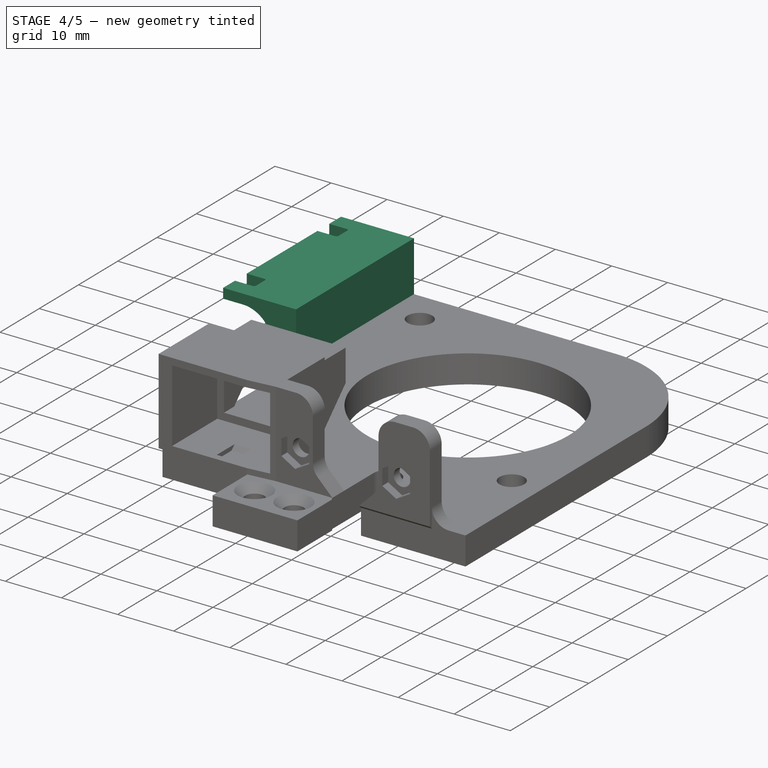
[diagram: stage 4 of 5 — iso view after this stage's code; geometry added in this stage tinted green]
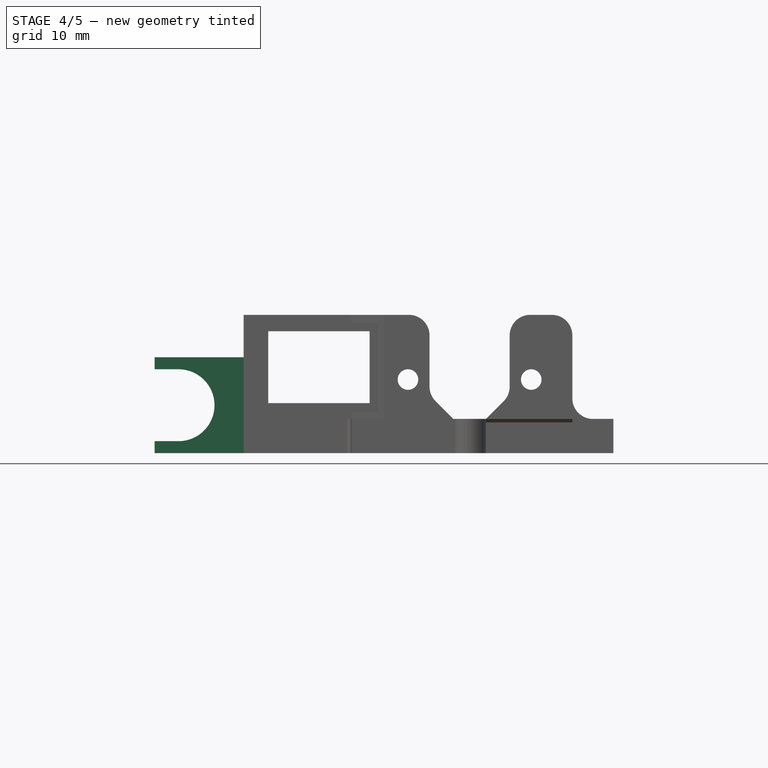
[diagram: stage 4 of 5 — front view after this stage's code; geometry added in this stage tinted green]
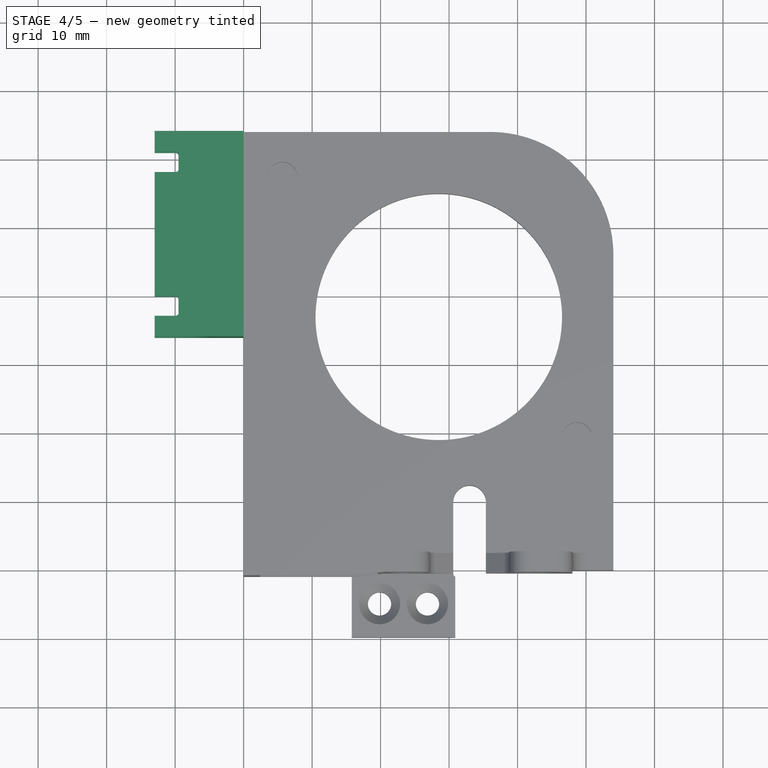
[diagram: stage 4 of 5 — top view after this stage's code; geometry added in this stage tinted green]
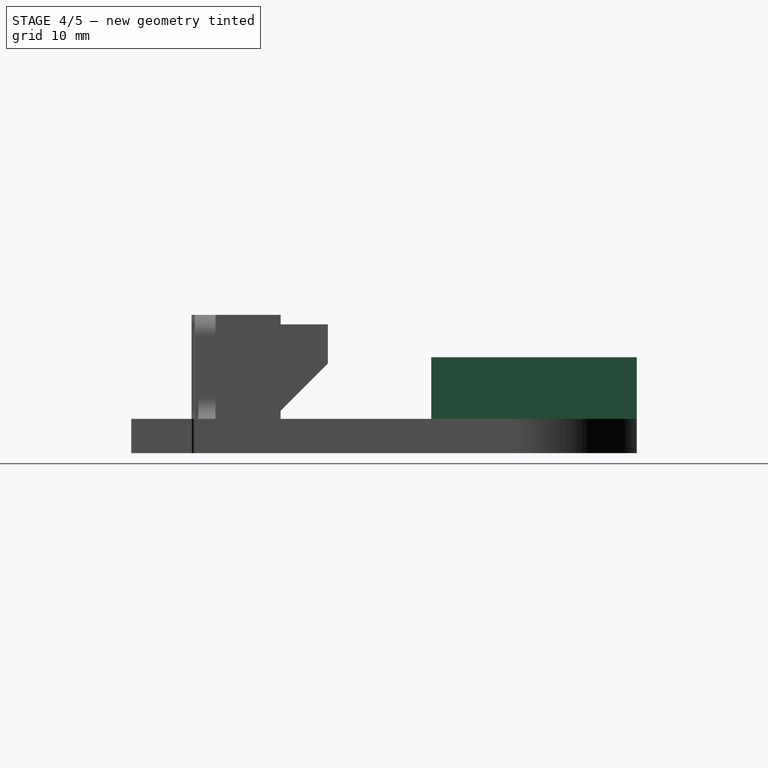
[diagram: stage 4 of 5 — right view after this stage's code; geometry added in this stage tinted green]
FEATURE [PartDesign::Body] Body  label="3DTouch-Holder"
  Group = -> [Sketch,Pad,Sketch001,Pocket,Sketch002,Pad001,Sketch007,Pocket001,Sketch008,Pocket002,Sketch009,Pocket003,Sketch010,Pad002,Sketch011,Pocket004,Sketch012,Pocket005,Sketch020,Pocket008,Fillet,Chamfer,Chamfer001,Sketch019,Pad005]
  Origin = -> Origin
  Tip = -> Pad005
FEATURE [PartDesign::FeatureBase] Clone
  BaseFeature = -> Body
FEATURE [PartDesign::Pad] Pad004
  AllowMultiFace = false
  BaseFeature = -> Clone
  Direction = (0,-1,-2e-16)
  Length = 30
  Length2 = 100
  Profile = -> Sketch014
  Reversed = true
  Type = 0
FEATURE [PartDesign::Pocket] Pocket006
  AllowMultiFace = false
  BaseFeature = -> Pad004
  Direction = (0,0,-1)
  Length = 5
  Length2 = 100
  Profile = -> Sketch015
  Type = 1
FEATURE [PartDesign::Pocket] Pocket007
  AllowMultiFace = false
  BaseFeature = -> Pocket006
  Direction = (0,0,-1)
  Length = 5
  Length2 = 100
  Midplane = true
  Profile = -> Sketch016
  Type = 1
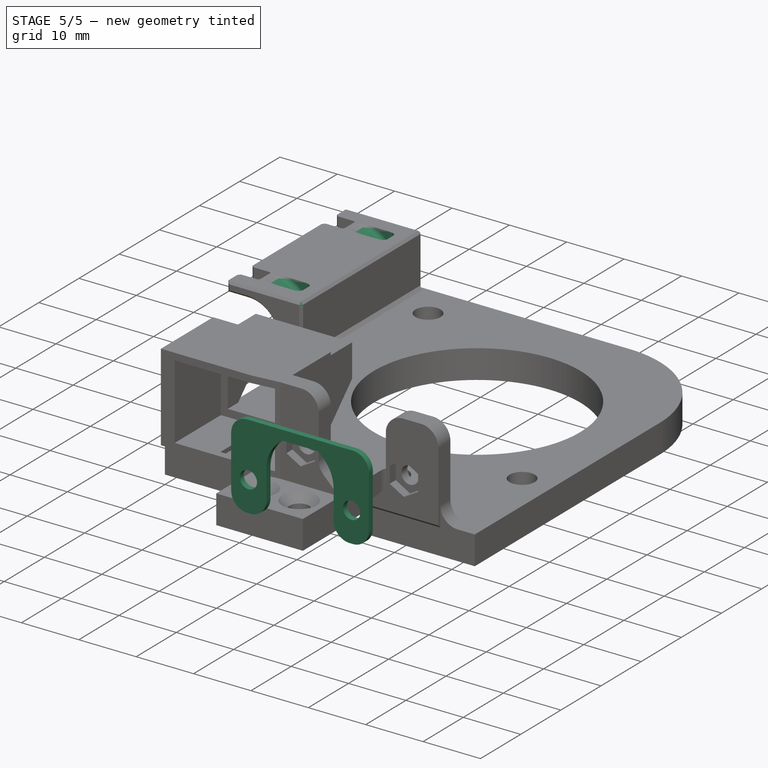
[diagram: stage 5 of 5 — iso view after this stage's code; geometry added in this stage tinted green]
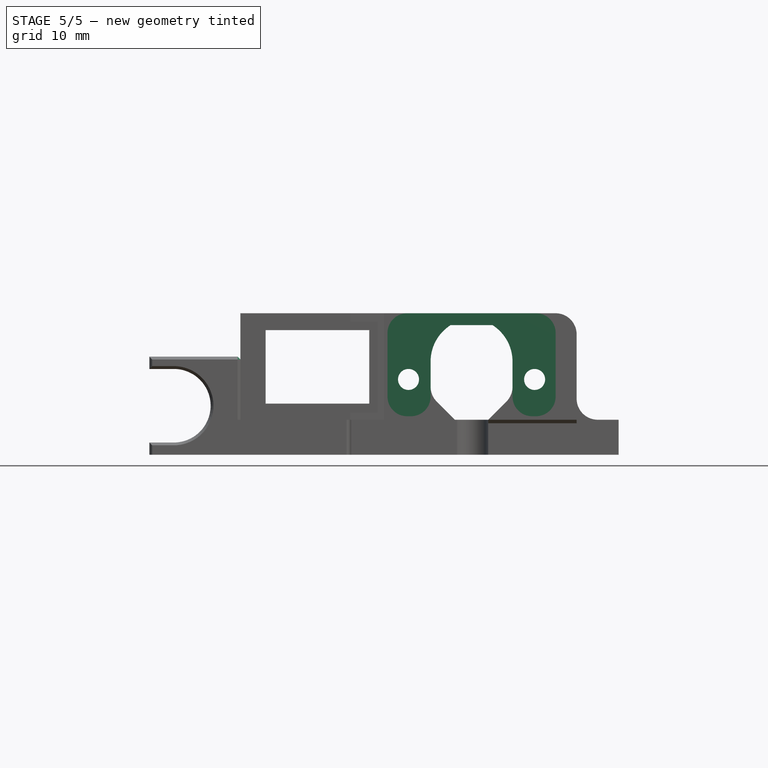
[diagram: stage 5 of 5 — front view after this stage's code; geometry added in this stage tinted green]
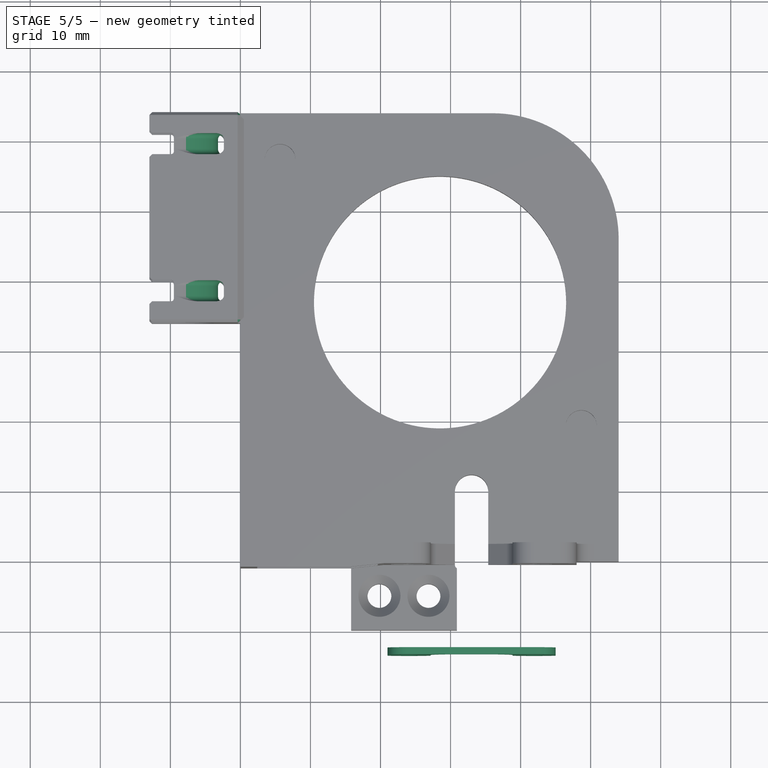
[diagram: stage 5 of 5 — top view after this stage's code; geometry added in this stage tinted green]
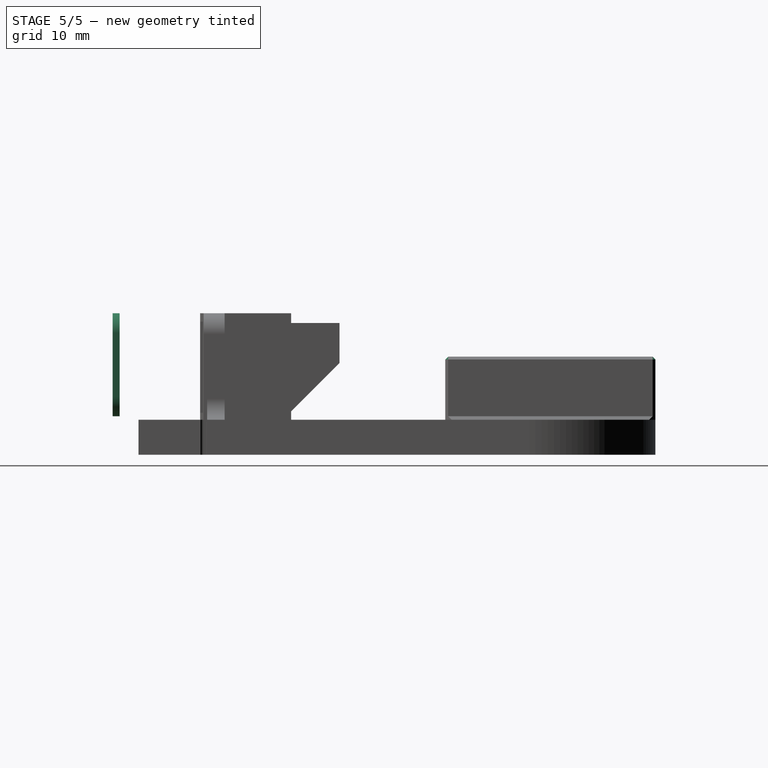
[diagram: stage 5 of 5 — right view after this stage's code; geometry added in this stage tinted green]
FEATURE [Sketcher::SketchObject] Sketch013
  AttachmentOffset = pos=(0,0,12.5) rot=(0,0,1;0rad)
  FullyConstrained = false
  MapMode = 5
  Placement = pos=(0,-12.5,-2.8e-15) rot=(1,0,0;1.5708rad)
  Support = -> [XZ_Plane]
  sketch-geometry (20):
    g0: LineSegment StartX=23.8 StartY=20.2 StartZ=0 EndX=42.2 EndY=20.2 EndZ=0
    g1: LineSegment StartX=45 StartY=17.4 StartZ=0 EndX=45 EndY=8.3 EndZ=0
    g2: LineSegment StartX=42.2 StartY=5.5 StartZ=0 EndX=41.65 EndY=5.5 EndZ=0
    g3: LineSegment StartX=21 StartY=8.3 StartZ=0 EndX=21 EndY=17.4 EndZ=0
    g4: LineSegment StartX=27.15 StartY=8.3 StartZ=0 EndX=27.15 EndY=13.3 EndZ=0
    g5: LineSegment StartX=30 StartY=18.5 StartZ=0 EndX=36 EndY=18.5 EndZ=0
    g6: LineSegment StartX=38.85 StartY=13.3 StartZ=0 EndX=38.85 EndY=8.3 EndZ=0
    g7: LineSegment StartX=24.35 StartY=5.5 StartZ=0 EndX=23.8 EndY=5.5 EndZ=0
    g8: ArcOfCircle CenterX=23.8 CenterY=17.4 CenterZ=0 NormalX=0 NormalY=0 NormalZ=1 AngleXU=0 Radius=2.8 StartAngle=1.5708 EndAngle=3.14159
    g9: ArcOfCircle CenterX=42.2 CenterY=17.4 CenterZ=0 NormalX=0 NormalY=0 NormalZ=1 AngleXU=0 Radius=2.8 StartAngle=0 EndAngle=1.5708
    g10: ArcOfCircle CenterX=42.2 CenterY=8.3 CenterZ=0 NormalX=0 NormalY=0 NormalZ=1 AngleXU=0 Radius=2.8 StartAngle=4.71239 EndAngle=6.28319
    g11: ArcOfCircle CenterX=41.65 CenterY=8.3 CenterZ=0 NormalX=0 NormalY=0 NormalZ=1 AngleXU=0 Radius=2.8 StartAngle=3.14159 EndAngle=4.71239
    g12: ArcOfCircle CenterX=24.35 CenterY=8.3 CenterZ=0 NormalX=0 NormalY=0 NormalZ=1 AngleXU=0 Radius=2.8 StartAngle=4.71239 EndAngle=6.28319
    g13: ArcOfCircle CenterX=23.8 CenterY=8.3 CenterZ=0 NormalX=0 NormalY=0 NormalZ=1 AngleXU=0 Radius=2.8 StartAngle=3.14159 EndAngle=4.71239
    g14: ArcOfCircle CenterX=33.3189 CenterY=13.3 CenterZ=0 NormalX=0 NormalY=0 NormalZ=1 AngleXU=0 Radius=6.16886 StartAngle=2.13886 EndAngle=3.14159
    g15: ArcOfCircle CenterX=32.6811 CenterY=13.3 CenterZ=0 NormalX=0 NormalY=0 NormalZ=1 AngleXU=0 Radius=6.16886 StartAngle=6.28319 EndAngle=7.28592
    g16: LineSegment StartX=33 StartY=10.75 StartZ=0 EndX=33 EndY=20.2 EndZ=0
    g17: LineSegment StartX=24 StartY=10.75 StartZ=0 EndX=42 EndY=10.75 EndZ=0
    g18: Circle CenterX=24 CenterY=10.75 CenterZ=0 NormalX=0 NormalY=0 NormalZ=1 AngleXU=0 Radius=1.5
    g19: Circle CenterX=42 CenterY=10.75 CenterZ=0 NormalX=0 NormalY=0 NormalZ=1 AngleXU=0 Radius=1.5
  constraints (52):
    c: Horizontal(g0)
    c: Horizontal(g2)
    c: Vertical(g1)
    c: Vertical(g3)
    c: Vertical(g4)
    c: Horizontal(g5)
    c: Vertical(g6)
    c: Tangent(g2,g7)
    c: Tangent(g3,g8) = 1.5708
    c: Tangent(g0,g8) = 1.5708
    c: Tangent(g0,g9) = 1.5708
    c: Tangent(g1,g9) = 1.5708
    c: Tangent(g1,g10) = 1.5708
    c: Tangent(g2,g10) = 1.5708
    c: Tangent(g2,g11) = 1.5708
    c: Tangent(g6,g11) = -1.5708
    c: Tangent(g4,g12) = -1.5708
    c: Tangent(g7,g12) = 1.5708
    c: Tangent(g3,g13) = 1.5708
    c: Tangent(g7,g13) = 1.5708
    c: DistanceX(g5,g5) = 6
    c: Coincident(g4,g14)
    c: Coincident(g15,g6)
    c: Coincident(g15,g5)
    c: Coincident(g5,g14)
    c: PointOnObject(g16,g0)
    c: Coincident(g18,g17)
    c: Coincident(g19,g17)
    c: Equal(g13,g12)
    c: Equal(g12,g11)
    c: Equal(g11,g10)
    c: Equal(g10,g9)
    c: Equal(g9,g8)
    c: Tangent(g4,g14)
    c: Tangent(g6,g15)
    c: Symmetric(g15,g14,g16)
    c: DistanceX(g4,g6) = 11.7
    c: Symmetric(g5,g5,g16)
    c: DistanceY(g7,g5) = 13
    c: DistanceY(g7,g0) = 14.7
    c: DistanceX(g3,g1) = 24
    c: DistanceX(g17,g17) = 18
    c: Symmetric(g18,g19,g16)
    c: Radius(g10) = 2.8
    c: Equal(g7,g2)
    c: PointOnObject(g16,g17)
    c: DistanceY(g19,g5) = 7.75
    c: DistanceY(g6,g5) = 5.2
    c: Equal(g18,g19)
    c: Diameter(g19) = 3
    c: DistanceX(g-1,g16) = 33
    c: DistanceY(g-1,g18) = 10.75
FEATURE [PartDesign::Pad] Pad003
  AllowMultiFace = false
  Direction = (1,1,1)
  Length = 1
  Length2 = 100
  Placement = pos=(0,0,0) rot=(1,0,0;1.5708rad)
  Profile = -> Sketch013
  Type = 0
FEATURE [PartDesign::SubtractivePipe] SubtractivePipe
  AllowMultiFace = false
  AuxilleryCurvelinear = true
  AuxillerySpineTangent = false
  BaseFeature = -> Pocket007
  Binormal = (0,0,0)
  Mode = 2
  Profile = -> Sketch017
  Spine = -> Sketch018
  SpineTangent = false
  Transformation = 0
  Transition = 0
FEATURE [PartDesign::LinearPattern] LinearPattern
  BaseFeature = -> SubtractivePipe
  Direction = -> Sketch017 [H_Axis]
  Length = 21
  Occurrences = 2
  Originals = -> [SubtractivePipe]
FEATURE [PartDesign::Chamfer] Chamfer002
  Angle = 45
  Base = -> LinearPattern [Edge220,Edge397,Edge219,Edge312,Edge313,Edge426,Edge558,Edge557,Edge490,Edge311,Edge218,Edge221,Edge224,Edge250,Edge252,Edge264,Edge266,Edge278,Edge280,Edge306,Edge308,Edge309,Edge216]
  BaseFeature = -> LinearPattern
  ChamferType = 0
  FlipDirection = false
  Size = 0.4
  Size2 = 1
  SupportTransform = false
  UseAllEdges = false
FEATURE [PartDesign::Chamfer] Chamfer003
  Angle = 45
  Base = -> Chamfer002 [Edge214]
  BaseFeature = -> Chamfer002
  ChamferType = 0
  FlipDirection = false
  Size = 0.5
  Size2 = 1
  SupportTransform = false
  UseAllEdges = false
FEATURE [PartDesign::Body] Body002  label="3DTouch-Holder_Cable"
  BaseFeature = -> Body
  Group = -> [Clone,Sketch014,Pad004,Sketch015,Pocket006,Sketch016,Pocket007,Sketch018,Sketch017,SubtractivePipe,LinearPattern,Chamfer002,Chamfer003]
  Origin = -> Origin002
  Tip = -> Chamfer003
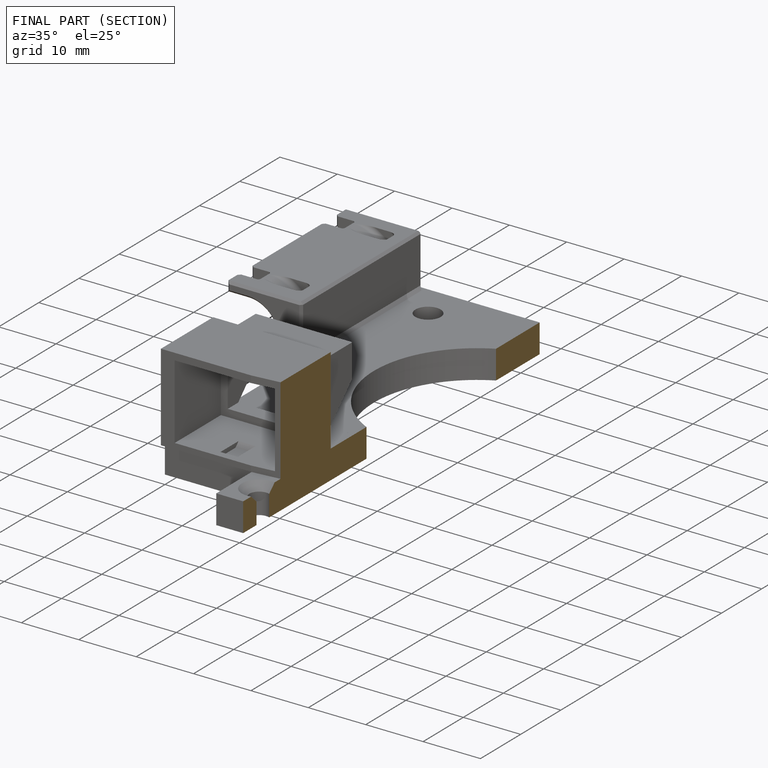
[diagram: finished part — half-section view (interior)]
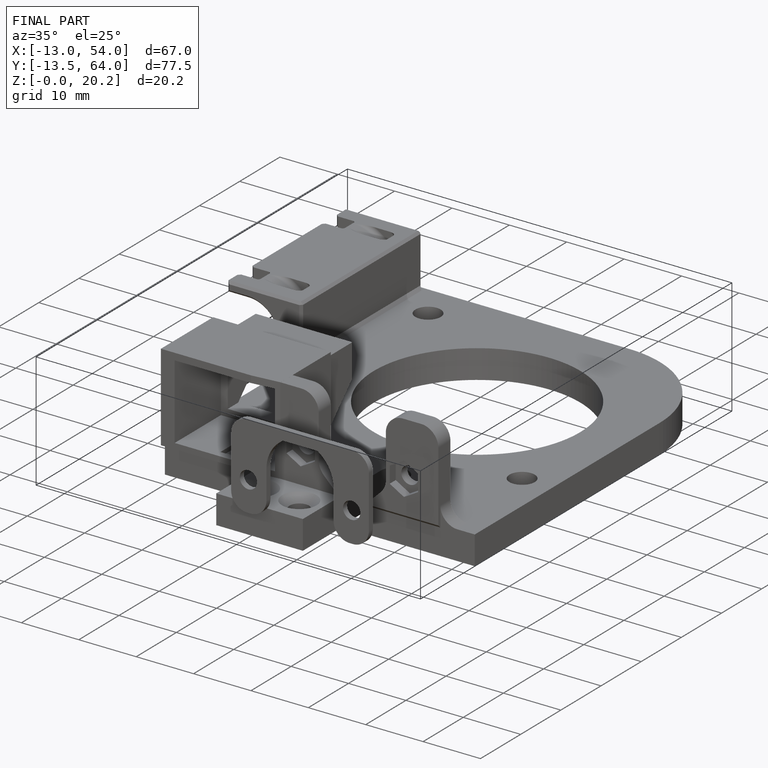
[diagram: finished part — iso view with bounding-box wireframe]
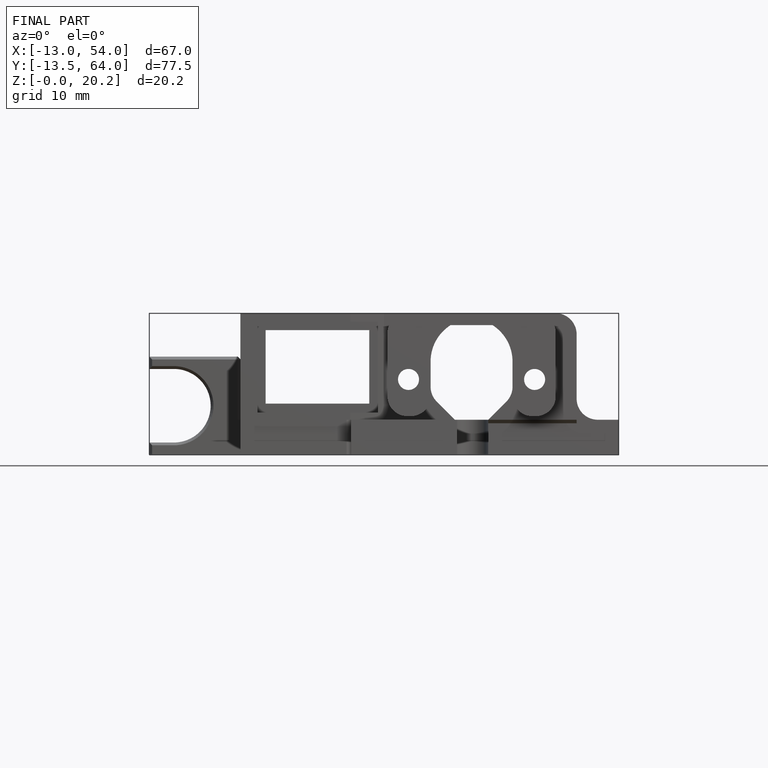
[diagram: finished part — front view with bounding-box wireframe]
